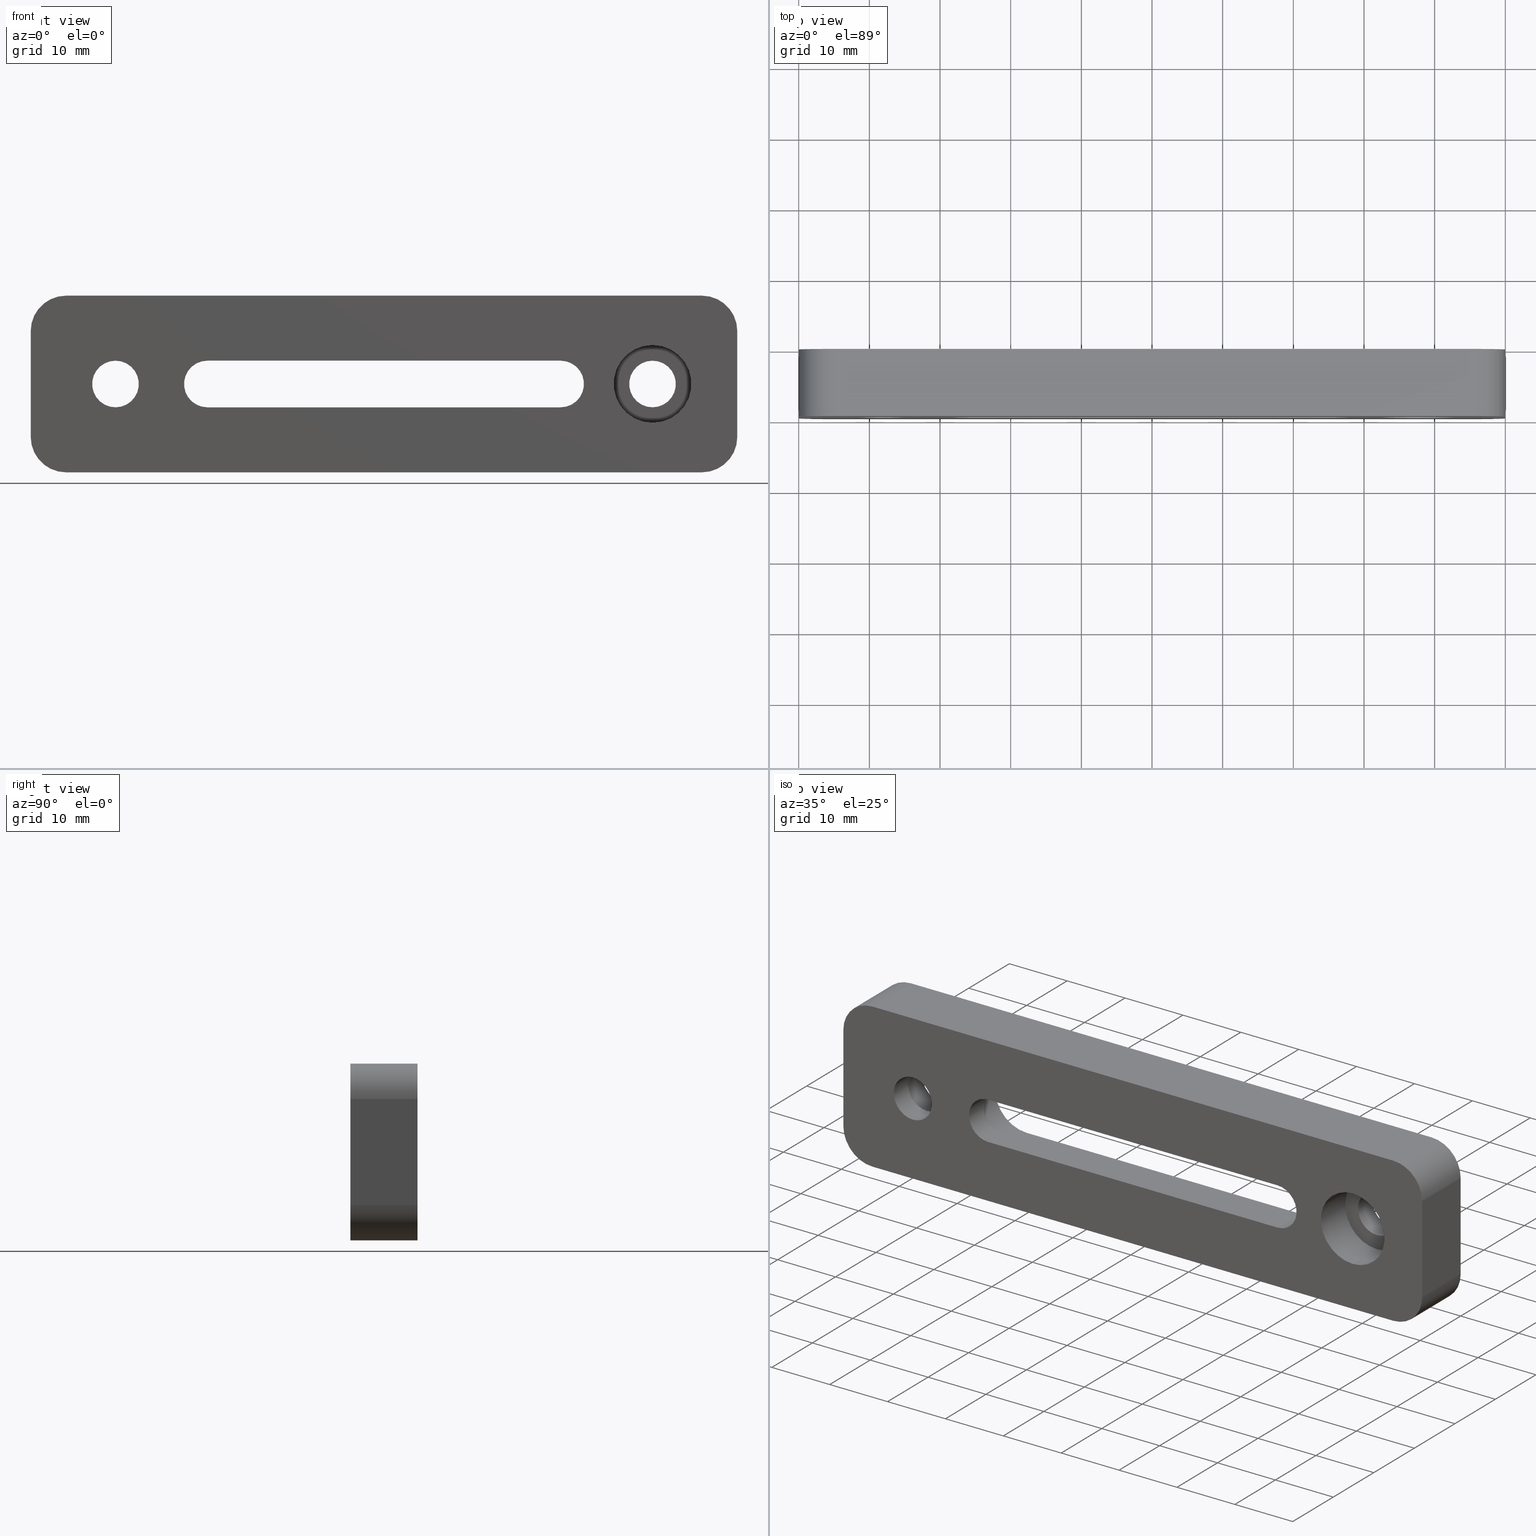
[diagram: canonical four-view strip — front | top / right | iso, engineering-drawing reading convention]
A machine part, canonical four-view strip (front | top / right | iso — engineering-drawing reading convention). The complete STEP part file that produces these views, byte-faithful:
ISO-10303-21;
HEADER;
FILE_DESCRIPTION (( 'STEP AP214' ),
    '1' );
FILE_NAME ('02SDB-3(M).STEP',
    '2018-11-08T01:43:01',
    ( '' ),
    ( '' ),
    'SwSTEP 2.0',
    'SolidWorks 2016',
    '' );
FILE_SCHEMA (( 'AUTOMOTIVE_DESIGN' ));
ENDSEC;

DATA;
#1 = ADVANCED_FACE ( 'NONE', ( #721, #556 ), #739, .F. ) ;
#2 = VECTOR ( 'NONE', #932, 1000.000000000000000 ) ;
#3 = DIRECTION ( 'NONE',  ( 0.0000000000000000000, 0.0000000000000000000, 1.000000000000000000 ) ) ;
#4 = FACE_OUTER_BOUND ( 'NONE', #225, .T. ) ;
#5 = CARTESIAN_POINT ( 'NONE',  ( -49.99999999999999300, 0.0000000000000000000, -2.312964634635743200E-014 ) ) ;
#6 = CARTESIAN_POINT ( 'NONE',  ( -45.00000000000000700, 0.0000000000000000000, -7.499999999999999100 ) ) ;
#7 = ORIENTED_EDGE ( 'NONE', *, *, #205, .F. ) ;
#8 = EDGE_CURVE ( 'NONE', #67, #720, #146, .T. ) ;
#9 = DIRECTION ( 'NONE',  ( 0.0000000000000000000, -1.000000000000000000, 0.0000000000000000000 ) ) ;
#10 = AXIS2_PLACEMENT_3D ( 'NONE', #245, #751, #199 ) ;
#11 = ORIENTED_EDGE ( 'NONE', *, *, #540, .F. ) ;
#12 = VERTEX_POINT ( 'NONE', #592 ) ;
#13 = DIRECTION ( 'NONE',  ( 0.0000000000000000000, 0.0000000000000000000, 1.000000000000000000 ) ) ;
#14 = DIRECTION ( 'NONE',  ( -0.0000000000000000000, 1.000000000000000000, -0.0000000000000000000 ) ) ;
#15 = EDGE_CURVE ( 'NONE', #155, #272, #506, .T. ) ;
#16 = EDGE_LOOP ( 'NONE', ( #340, #601 ) ) ;
#17 = EDGE_CURVE ( 'NONE', #78, #126, #701, .T. ) ;
#18 = LINE ( 'NONE', #812, #226 ) ;
#19 = CIRCLE ( 'NONE', #629, 5.499999999999998200 ) ;
#20 = CARTESIAN_POINT ( 'NONE',  ( 38.00000000000000000, -9.500000000000000000, -5.499999999999998200 ) ) ;
#21 = ADVANCED_FACE ( 'NONE', ( #337 ), #291, .F. ) ;
#22 = VERTEX_POINT ( 'NONE', #331 ) ;
#23 = CARTESIAN_POINT ( 'NONE',  ( -25.00000000000000000, -9.500000000000000000, 6.027989040367472400E-015 ) ) ;
#24 = ORIENTED_EDGE ( 'NONE', *, *, #899, .F. ) ;
#25 = CARTESIAN_POINT ( 'NONE',  ( -25.00000000000000000, -6.000000000000000000, 5.499999999999999100 ) ) ;
#26 = FACE_OUTER_BOUND ( 'NONE', #754, .T. ) ;
#27 = EDGE_CURVE ( 'NONE', #546, #620, #676, .T. ) ;
#28 = AXIS2_PLACEMENT_3D ( 'NONE', #646, #793, #374 ) ;
#29 = CARTESIAN_POINT ( 'NONE',  ( -34.69999999999998900, -5.999999999999998200, 0.0000000000000000000 ) ) ;
#30 = CARTESIAN_POINT ( 'NONE',  ( 25.00000000000000000, -9.500000000000000000, 3.299999999999995800 ) ) ;
#31 = DIRECTION ( 'NONE',  ( 1.000000000000000000, 0.0000000000000000000, -1.387778780781445700E-016 ) ) ;
#32 = VERTEX_POINT ( 'NONE', #809 ) ;
#33 = ORIENTED_EDGE ( 'NONE', *, *, #851, .T. ) ;
#34 = CARTESIAN_POINT ( 'NONE',  ( -25.00000000000000000, -9.500000000000000000, -3.299999999999988700 ) ) ;
#35 = FACE_OUTER_BOUND ( 'NONE', #149, .T. ) ;
#36 = FACE_BOUND ( 'NONE', #385, .T. ) ;
#37 = CLOSED_SHELL ( 'NONE', ( #738, #890, #806, #594, #443, #573, #424, #519, #94, #666, #523, #240, #284, #504, #373, #307, #786, #169, #98, #167, #865, #233, #147, #742, #1, #21, #218, #814, #440 ) ) ;
#38 = AXIS2_PLACEMENT_3D ( 'NONE', #365, #875, #13 ) ;
#39 = EDGE_LOOP ( 'NONE', ( #426, #709, #896, #297 ) ) ;
#40 = SURFACE_SIDE_STYLE ('',( #803 ) ) ;
#41 = CYLINDRICAL_SURFACE ( 'NONE', #217, 5.499999999999998200 ) ;
#42 = ORIENTED_EDGE ( 'NONE', *, *, #749, .T. ) ;
#43 = DIRECTION ( 'NONE',  ( 0.0000000000000000000, 1.000000000000000000, -0.0000000000000000000 ) ) ;
#44 = DIRECTION ( 'NONE',  ( 0.0000000000000000000, 0.0000000000000000000, 1.000000000000000000 ) ) ;
#45 = DIRECTION ( 'NONE',  ( 1.000000000000000000, -0.0000000000000000000, 0.0000000000000000000 ) ) ;
#46 = CARTESIAN_POINT ( 'NONE',  ( 25.00000000000000000, -9.500000000000000000, -3.299999999999995800 ) ) ;
#47 = DIRECTION ( 'NONE',  ( 0.0000000000000000000, 1.000000000000000000, -0.0000000000000000000 ) ) ;
#48 = EDGE_CURVE ( 'NONE', #570, #651, #870, .T. ) ;
#49 = ORIENTED_EDGE ( 'NONE', *, *, #112, .T. ) ;
#50 = VERTEX_POINT ( 'NONE', #550 ) ;
#51 = AXIS2_PLACEMENT_3D ( 'NONE', #901, #520, #544 ) ;
#52 = FACE_OUTER_BOUND ( 'NONE', #869, .T. ) ;
#53 = ORIENTED_EDGE ( 'NONE', *, *, #716, .F. ) ;
#54 = CIRCLE ( 'NONE', #141, 4.999999999999998200 ) ;
#55 = FACE_OUTER_BOUND ( 'NONE', #536, .T. ) ;
#56 = EDGE_CURVE ( 'NONE', #697, #752, #453, .T. ) ;
#57 = DIRECTION ( 'NONE',  ( -0.0000000000000000000, 1.000000000000000000, -0.0000000000000000000 ) ) ;
#58 = EDGE_CURVE ( 'NONE', #514, #884, #652, .T. ) ;
#59 = ORIENTED_EDGE ( 'NONE', *, *, #401, .F. ) ;
#60 = CARTESIAN_POINT ( 'NONE',  ( 38.00000000000000000, -3.500000000000001300, 0.0000000000000000000 ) ) ;
#61 = COLOUR_RGB ( '',0.5019607843137254800, 0.5019607843137254800, 0.5019607843137254800 ) ;
#62 = VERTEX_POINT ( 'NONE', #565 ) ;
#63 = DIRECTION ( 'NONE',  ( 0.0000000000000000000, 0.0000000000000000000, -1.000000000000000000 ) ) ;
#64 = ORIENTED_EDGE ( 'NONE', *, *, #840, .T. ) ;
#65 = FACE_BOUND ( 'NONE', #202, .T. ) ;
#66 = CARTESIAN_POINT ( 'NONE',  ( 50.00000000000000700, -9.500000000000000000, 7.500000000000000900 ) ) ;
#67 = VERTEX_POINT ( 'NONE', #198 ) ;
#68 = FACE_OUTER_BOUND ( 'NONE', #617, .T. ) ;
#69 = EDGE_CURVE ( 'NONE', #546, #272, #822, .T. ) ;
#70 = UNCERTAINTY_MEASURE_WITH_UNIT (LENGTH_MEASURE( 1.000000000000000100E-005 ), #405, 'distance_accuracy_value', 'NONE');
#71 = CARTESIAN_POINT ( 'NONE',  ( -38.00000000000000000, -5.999999999999998200, 5.499999999999998200 ) ) ;
#72 = AXIS2_PLACEMENT_3D ( 'NONE', #257, #537, #931 ) ;
#73 = CARTESIAN_POINT ( 'NONE',  ( -21.70000000000000300, -6.000000000000000000, 3.300000000000002000 ) ) ;
#74 = VERTEX_POINT ( 'NONE', #687 ) ;
#75 = DIRECTION ( 'NONE',  ( 0.0000000000000000000, 0.0000000000000000000, -1.000000000000000000 ) ) ;
#76 = ORIENTED_EDGE ( 'NONE', *, *, #563, .T. ) ;
#77 = ORIENTED_EDGE ( 'NONE', *, *, #205, .T. ) ;
#78 = VERTEX_POINT ( 'NONE', #856 ) ;
#79 = FACE_OUTER_BOUND ( 'NONE', #569, .T. ) ;
#80 = DIRECTION ( 'NONE',  ( 0.0000000000000000000, 0.0000000000000000000, 1.000000000000000000 ) ) ;
#81 = ORIENTED_EDGE ( 'NONE', *, *, #788, .T. ) ;
#82 = CIRCLE ( 'NONE', #38, 3.299999999999997200 ) ;
#83 = VECTOR ( 'NONE', #607, 1000.000000000000000 ) ;
#84 = DIRECTION ( 'NONE',  ( -1.000000000000000000, 0.0000000000000000000, 1.387778780781445700E-016 ) ) ;
#85 = FILL_AREA_STYLE ('',( #500 ) ) ;
#86 = CARTESIAN_POINT ( 'NONE',  ( -50.00000000000000000, -9.500000000000000000, 7.499999999999999100 ) ) ;
#87 = AXIS2_PLACEMENT_3D ( 'NONE', #787, #361, #640 ) ;
#88 = EDGE_LOOP ( 'NONE', ( #614, #502, #81, #213 ) ) ;
#89 = ORIENTED_EDGE ( 'NONE', *, *, #912, .T. ) ;
#90 = DIRECTION ( 'NONE',  ( 0.0000000000000000000, 1.000000000000000000, 0.0000000000000000000 ) ) ;
#91 = AXIS2_PLACEMENT_3D ( 'NONE', #177, #311, #308 ) ;
#92 = VECTOR ( 'NONE', #642, 1000.000000000000000 ) ;
#93 = CARTESIAN_POINT ( 'NONE',  ( -38.00000000000000000, 0.0000000000000000000, 0.0000000000000000000 ) ) ;
#94 = ADVANCED_FACE ( 'NONE', ( #841 ), #552, .F. ) ;
#95 = SURFACE_STYLE_FILL_AREA ( #85 ) ;
#96 = CARTESIAN_POINT ( 'NONE',  ( 50.00000000000000700, -9.500000000000000000, 7.500000000000000900 ) ) ;
#97 = DIRECTION ( 'NONE',  ( 0.0000000000000000000, 1.000000000000000000, 0.0000000000000000000 ) ) ;
#98 = ADVANCED_FACE ( 'NONE', ( #624, #52 ), #286, .F. ) ;
#99 = DIRECTION ( 'NONE',  ( -0.0000000000000000000, -1.000000000000000000, -0.0000000000000000000 ) ) ;
#100 = ORIENTED_EDGE ( 'NONE', *, *, #200, .F. ) ;
#101 = ORIENTED_EDGE ( 'NONE', *, *, #339, .F. ) ;
#102 = DIRECTION ( 'NONE',  ( 0.0000000000000000000, 0.0000000000000000000, -1.000000000000000000 ) ) ;
#103 = VECTOR ( 'NONE', #525, 1000.000000000000000 ) ;
#104 = EDGE_CURVE ( 'NONE', #513, #222, #430, .T. ) ;
#105 = EDGE_LOOP ( 'NONE', ( #476, #118, #554, #488 ) ) ;
#106 = FACE_OUTER_BOUND ( 'NONE', #455, .T. ) ;
#107 = LINE ( 'NONE', #234, #83 ) ;
#108 = AXIS2_PLACEMENT_3D ( 'NONE', #930, #195, #854 ) ;
#109 = DIRECTION ( 'NONE',  ( -0.0000000000000000000, 1.000000000000000000, -0.0000000000000000000 ) ) ;
#110 = EDGE_LOOP ( 'NONE', ( #675, #305 ) ) ;
#111 = DIRECTION ( 'NONE',  ( -0.0000000000000000000, -1.000000000000000000, -0.0000000000000000000 ) ) ;
#112 = EDGE_CURVE ( 'NONE', #413, #62, #794, .T. ) ;
#113 = DIRECTION ( 'NONE',  ( 0.0000000000000000000, 0.0000000000000000000, 1.000000000000000000 ) ) ;
#114 = EDGE_CURVE ( 'NONE', #515, #837, #480, .T. ) ;
#115 = ORIENTED_EDGE ( 'NONE', *, *, #904, .F. ) ;
#116 = VERTEX_POINT ( 'NONE', #86 ) ;
#117 = CARTESIAN_POINT ( 'NONE',  ( -25.00000000000000000, 0.0000000000000000000, 6.027989040367472400E-015 ) ) ;
#118 = ORIENTED_EDGE ( 'NONE', *, *, #470, .F. ) ;
#119 = FACE_OUTER_BOUND ( 'NONE', #170, .T. ) ;
#120 = ORIENTED_EDGE ( 'NONE', *, *, #372, .T. ) ;
#121 = CARTESIAN_POINT ( 'NONE',  ( 50.00000000000000700, 0.0000000000000000000, 7.500000000000000900 ) ) ;
#122 = CARTESIAN_POINT ( 'NONE',  ( -45.00000000000000700, -9.500000000000000000, -7.499999999999999100 ) ) ;
#123 = EDGE_CURVE ( 'NONE', #513, #651, #603, .T. ) ;
#124 = AXIS2_PLACEMENT_3D ( 'NONE', #586, #804, #304 ) ;
#125 = ORIENTED_EDGE ( 'NONE', *, *, #702, .T. ) ;
#126 = VERTEX_POINT ( 'NONE', #585 ) ;
#127 = ORIENTED_EDGE ( 'NONE', *, *, #702, .F. ) ;
#128 = CARTESIAN_POINT ( 'NONE',  ( -38.00000000000000000, 0.0000000000000000000, -3.300000000000004300 ) ) ;
#129 = VECTOR ( 'NONE', #90, 1000.000000000000000 ) ;
#130 = LINE ( 'NONE', #622, #481 ) ;
#131 = CARTESIAN_POINT ( 'NONE',  ( 45.00000000000000700, 0.0000000000000000000, -7.499999999999999100 ) ) ;
#132 = VERTEX_POINT ( 'NONE', #437 ) ;
#133 = PLANE ( 'NONE',  #704 ) ;
#134 = CIRCLE ( 'NONE', #276, 5.499999999999998200 ) ;
#135 = ORIENTED_EDGE ( 'NONE', *, *, #505, .T. ) ;
#136 = CARTESIAN_POINT ( 'NONE',  ( 45.00000000000001400, 0.0000000000000000000, 12.50000000000000000 ) ) ;
#137 = EDGE_LOOP ( 'NONE', ( #645, #635 ) ) ;
#138 = AXIS2_PLACEMENT_3D ( 'NONE', #30, #224, #31 ) ;
#139 = DIRECTION ( 'NONE',  ( -0.0000000000000000000, 1.000000000000000000, -0.0000000000000000000 ) ) ;
#140 = CYLINDRICAL_SURFACE ( 'NONE', #864, 4.999999999999998200 ) ;
#141 = AXIS2_PLACEMENT_3D ( 'NONE', #402, #375, #748 ) ;
#142 = DIRECTION ( 'NONE',  ( -0.0000000000000000000, 1.000000000000000000, -0.0000000000000000000 ) ) ;
#143 = DIRECTION ( 'NONE',  ( 0.0000000000000000000, 0.0000000000000000000, -1.000000000000000000 ) ) ;
#144 = ORIENTED_EDGE ( 'NONE', *, *, #435, .T. ) ;
#145 = PRODUCT_CONTEXT ( 'NONE', #934, 'mechanical' ) ;
#146 = LINE ( 'NONE', #889, #528 ) ;
#147 = ADVANCED_FACE ( 'NONE', ( #106 ), #499, .T. ) ;
#148 = DIRECTION ( 'NONE',  ( 0.0000000000000000000, 0.0000000000000000000, 1.000000000000000000 ) ) ;
#149 = EDGE_LOOP ( 'NONE', ( #354, #526, #180, #771 ) ) ;
#150 = CIRCLE ( 'NONE', #900, 4.999999999999993800 ) ;
#151 = DIRECTION ( 'NONE',  ( -0.0000000000000000000, 1.000000000000000000, -0.0000000000000000000 ) ) ;
#152 = EDGE_CURVE ( 'NONE', #78, #697, #269, .T. ) ;
#153 = PLANE ( 'NONE',  #360 ) ;
#154 = AXIS2_PLACEMENT_3D ( 'NONE', #469, #574, #670 ) ;
#155 = VERTEX_POINT ( 'NONE', #578 ) ;
#156 = LINE ( 'NONE', #456, #486 ) ;
#157 = DIRECTION ( 'NONE',  ( 0.0000000000000000000, 0.0000000000000000000, -1.000000000000000000 ) ) ;
#158 = CARTESIAN_POINT ( 'NONE',  ( 38.00000000000000000, -9.500000000000000000, 0.0000000000000000000 ) ) ;
#159 = ORIENTED_EDGE ( 'NONE', *, *, #346, .T. ) ;
#160 = EDGE_CURVE ( 'NONE', #697, #289, #457, .T. ) ;
#161 = EDGE_CURVE ( 'NONE', #399, #566, #844, .T. ) ;
#162 = SURFACE_STYLE_USAGE ( .BOTH. , #908 ) ;
#163 = ORIENTED_EDGE ( 'NONE', *, *, #254, .F. ) ;
#164 = FACE_OUTER_BOUND ( 'NONE', #756, .T. ) ;
#165 = VECTOR ( 'NONE', #321, 1000.000000000000000 ) ;
#166 = DIRECTION ( 'NONE',  ( 0.0000000000000000000, 0.0000000000000000000, -1.000000000000000000 ) ) ;
#167 = ADVANCED_FACE ( 'NONE', ( #824 ), #936, .F. ) ;
#168 = DIRECTION ( 'NONE',  ( -0.0000000000000000000, 1.000000000000000000, -0.0000000000000000000 ) ) ;
#169 = ADVANCED_FACE ( 'NONE', ( #626 ), #798, .F. ) ;
#170 = EDGE_LOOP ( 'NONE', ( #802, #582, #820, #700 ) ) ;
#171 = EDGE_CURVE ( 'NONE', #116, #570, #54, .T. ) ;
#172 = ORIENTED_EDGE ( 'NONE', *, *, #104, .F. ) ;
#173 = AXIS2_PLACEMENT_3D ( 'NONE', #867, #577, #653 ) ;
#174 = CYLINDRICAL_SURFACE ( 'NONE', #508, 5.000000000000003600 ) ;
#175 = EDGE_LOOP ( 'NONE', ( #379, #194, #773, #192 ) ) ;
#176 = VECTOR ( 'NONE', #692, 1000.000000000000000 ) ;
#177 = CARTESIAN_POINT ( 'NONE',  ( 25.00000000000000000, -9.500000000000000000, -3.299999999999995800 ) ) ;
#178 = ORIENTED_EDGE ( 'NONE', *, *, #563, .F. ) ;
#179 = DIRECTION ( 'NONE',  ( 0.0000000000000000000, 0.0000000000000000000, 1.000000000000000000 ) ) ;
#180 = ORIENTED_EDGE ( 'NONE', *, *, #716, .T. ) ;
#181 = ORIENTED_EDGE ( 'NONE', *, *, #659, .T. ) ;
#182 = ORIENTED_EDGE ( 'NONE', *, *, #356, .F. ) ;
#183 = ORIENTED_EDGE ( 'NONE', *, *, #505, .F. ) ;
#184 = CIRCLE ( 'NONE', #668, 5.000000000000003600 ) ;
#185 = CIRCLE ( 'NONE', #776, 5.499999999999998200 ) ;
#186 = AXIS2_PLACEMENT_3D ( 'NONE', #23, #596, #524 ) ;
#187 = DIRECTION ( 'NONE',  ( 0.0000000000000000000, 0.0000000000000000000, -1.000000000000000000 ) ) ;
#188 = CARTESIAN_POINT ( 'NONE',  ( 0.0000000000000000000, 0.0000000000000000000, -5.499999999999997300 ) ) ;
#189 = SHAPE_DEFINITION_REPRESENTATION ( #396, #501 ) ;
#190 = AXIS2_PLACEMENT_3D ( 'NONE', #117, #715, #446 ) ;
#191 = DIRECTION ( 'NONE',  ( 0.0000000000000000000, 0.0000000000000000000, 1.000000000000000000 ) ) ;
#192 = ORIENTED_EDGE ( 'NONE', *, *, #339, .T. ) ;
#193 = EDGE_LOOP ( 'NONE', ( #172, #699, #64, #579, #438, #135, #449, #258 ) ) ;
#194 = ORIENTED_EDGE ( 'NONE', *, *, #152, .T. ) ;
#195 = DIRECTION ( 'NONE',  ( 0.0000000000000000000, 1.000000000000000000, -0.0000000000000000000 ) ) ;
#196 = CIRCLE ( 'NONE', #551, 3.300000000000011400 ) ;
#197 = VERTEX_POINT ( 'NONE', #319 ) ;
#198 = CARTESIAN_POINT ( 'NONE',  ( 38.00000000000000000, -3.500000000000001300, -5.499999999999998200 ) ) ;
#199 = DIRECTION ( 'NONE',  ( 0.0000000000000000000, 0.0000000000000000000, -1.000000000000000000 ) ) ;
#200 = EDGE_CURVE ( 'NONE', #514, #906, #82, .T. ) ;
#201 = AXIS2_PLACEMENT_3D ( 'NONE', #827, #287, #883 ) ;
#202 = EDGE_LOOP ( 'NONE', ( #746, #333, #688, #452 ) ) ;
#203 = ORIENTED_EDGE ( 'NONE', *, *, #301, .F. ) ;
#204 = CYLINDRICAL_SURFACE ( 'NONE', #415, 3.300000000000004300 ) ;
#205 = EDGE_CURVE ( 'NONE', #289, #894, #252, .T. ) ;
#206 = CIRCLE ( 'NONE', #533, 5.000000000000003600 ) ;
#207 = CARTESIAN_POINT ( 'NONE',  ( 25.00000000000000000, -9.500000000000000000, 3.299999999999995800 ) ) ;
#208 = EDGE_CURVE ( 'NONE', #74, #126, #605, .T. ) ;
#209 = CARTESIAN_POINT ( 'NONE',  ( -50.00000000000000000, 0.0000000000000000000, 7.499999999999999100 ) ) ;
#210 = DIRECTION ( 'NONE',  ( 4.625929269271486900E-016, 0.0000000000000000000, -1.000000000000000000 ) ) ;
#211 = CARTESIAN_POINT ( 'NONE',  ( -25.00000000000000000, 0.0000000000000000000, -5.499999999999997300 ) ) ;
#212 = FACE_BOUND ( 'NONE', #110, .T. ) ;
#213 = ORIENTED_EDGE ( 'NONE', *, *, #613, .T. ) ;
#214 = EDGE_CURVE ( 'NONE', #752, #894, #432, .T. ) ;
#215 = DIRECTION ( 'NONE',  ( 0.0000000000000000000, 0.0000000000000000000, 1.000000000000000000 ) ) ;
#216 = CARTESIAN_POINT ( 'NONE',  ( 50.00000000000000700, -9.500000000000000000, 0.0000000000000000000 ) ) ;
#217 = AXIS2_PLACEMENT_3D ( 'NONE', #220, #310, #148 ) ;
#218 = ADVANCED_FACE ( 'NONE', ( #35 ), #204, .F. ) ;
#219 = CARTESIAN_POINT ( 'NONE',  ( -49.99999999999999300, -9.500000000000000000, -7.499999999999999100 ) ) ;
#220 = CARTESIAN_POINT ( 'NONE',  ( 25.00000000000000000, 0.0000000000000000000, -9.524495536929381000E-017 ) ) ;
#221 = CARTESIAN_POINT ( 'NONE',  ( 25.00000000000000000, -6.000000000000000000, -9.524495536929381000E-017 ) ) ;
#222 = VERTEX_POINT ( 'NONE', #726 ) ;
#223 = CARTESIAN_POINT ( 'NONE',  ( 38.00000000000000000, -9.500000000000000000, 0.0000000000000000000 ) ) ;
#224 = DIRECTION ( 'NONE',  ( 1.387778780781445700E-016, 0.0000000000000000000, 1.000000000000000000 ) ) ;
#225 = EDGE_LOOP ( 'NONE', ( #390, #927, #503, #278 ) ) ;
#226 = VECTOR ( 'NONE', #473, 1000.000000000000000 ) ;
#227 = FACE_BOUND ( 'NONE', #175, .T. ) ;
#228 = DIRECTION ( 'NONE',  ( 0.0000000000000000000, 1.000000000000000000, -0.0000000000000000000 ) ) ;
#229 = AXIS2_PLACEMENT_3D ( 'NONE', #581, #99, #102 ) ;
#230 = ORIENTED_EDGE ( 'NONE', *, *, #264, .T. ) ;
#231 = CARTESIAN_POINT ( 'NONE',  ( 41.30000000000001100, -3.500000000000001300, 0.0000000000000000000 ) ) ;
#232 = DIRECTION ( 'NONE',  ( -1.000000000000000000, 0.0000000000000000000, 0.0000000000000000000 ) ) ;
#233 = ADVANCED_FACE ( 'NONE', ( #583 ), #836, .T. ) ;
#234 = CARTESIAN_POINT ( 'NONE',  ( -25.00000000000000000, 4.000000000000000000, 5.499999999999999100 ) ) ;
#235 = CARTESIAN_POINT ( 'NONE',  ( -49.99999999999999300, -9.500000000000000000, -2.312964634635743200E-014 ) ) ;
#236 = ORIENTED_EDGE ( 'NONE', *, *, #152, .F. ) ;
#237 = AXIS2_PLACEMENT_3D ( 'NONE', #363, #880, #191 ) ;
#238 = DIRECTION ( 'NONE',  ( -0.0000000000000000000, -1.000000000000000000, -0.0000000000000000000 ) ) ;
#239 = FACE_BOUND ( 'NONE', #376, .T. ) ;
#240 = ADVANCED_FACE ( 'NONE', ( #774 ), #557, .T. ) ;
#241 = FILL_AREA_STYLE_COLOUR ( '', #61 ) ;
#242 = CARTESIAN_POINT ( 'NONE',  ( 38.00000000000000000, -9.500000000000000000, 0.0000000000000000000 ) ) ;
#243 = CARTESIAN_POINT ( 'NONE',  ( 38.00000000000000000, -3.500000000000001300, 3.300000000000010900 ) ) ;
#244 = EDGE_LOOP ( 'NONE', ( #919, #914, #625, #838 ) ) ;
#245 = CARTESIAN_POINT ( 'NONE',  ( 38.00000000000000000, 0.0000000000000000000, 0.0000000000000000000 ) ) ;
#246 = EDGE_LOOP ( 'NONE', ( #843, #819, #905, #261 ) ) ;
#247 = EDGE_CURVE ( 'NONE', #906, #474, #18, .T. ) ;
#248 = VECTOR ( 'NONE', #423, 1000.000000000000000 ) ;
#249 = AXIS2_PLACEMENT_3D ( 'NONE', #694, #611, #63 ) ;
#250 = VERTEX_POINT ( 'NONE', #427 ) ;
#251 = CARTESIAN_POINT ( 'NONE',  ( 45.00000000000000700, -9.500000000000000000, 7.500000000000000900 ) ) ;
#252 = LINE ( 'NONE', #891, #408 ) ;
#253 = CYLINDRICAL_SURFACE ( 'NONE', #434, 5.499999999999998200 ) ;
#254 = EDGE_CURVE ( 'NONE', #368, #32, #386, .T. ) ;
#255 = EDGE_CURVE ( 'NONE', #662, #197, #370, .T. ) ;
#256 = DIRECTION ( 'NONE',  ( 1.000000000000000000, 0.0000000000000000000, -1.387778780781445700E-016 ) ) ;
#257 = CARTESIAN_POINT ( 'NONE',  ( 0.0000000000000000000, -9.500000000000000000, 12.50000000000000000 ) ) ;
#258 = ORIENTED_EDGE ( 'NONE', *, *, #644, .T. ) ;
#259 = DIRECTION ( 'NONE',  ( 0.0000000000000000000, 1.000000000000000000, 0.0000000000000000000 ) ) ;
#260 = VECTOR ( 'NONE', #497, 1000.000000000000000 ) ;
#261 = ORIENTED_EDGE ( 'NONE', *, *, #470, .T. ) ;
#262 = VECTOR ( 'NONE', #510, 1000.000000000000000 ) ;
#263 = DIRECTION ( 'NONE',  ( 0.0000000000000000000, 0.0000000000000000000, 1.000000000000000000 ) ) ;
#264 = EDGE_CURVE ( 'NONE', #50, #353, #757, .T. ) ;
#265 = ORIENTED_EDGE ( 'NONE', *, *, #264, .F. ) ;
#266 = EDGE_LOOP ( 'NONE', ( #463, #300 ) ) ;
#267 = VECTOR ( 'NONE', #475, 1000.000000000000000 ) ;
#268 = DIRECTION ( 'NONE',  ( 0.0000000000000000000, 1.000000000000000000, 0.0000000000000000000 ) ) ;
#269 = LINE ( 'NONE', #575, #656 ) ;
#270 = FACE_BOUND ( 'NONE', #861, .T. ) ;
#271 = CARTESIAN_POINT ( 'NONE',  ( 38.00000000000000000, -3.500000000000001300, 0.0000000000000000000 ) ) ;
#272 = VERTEX_POINT ( 'NONE', #350 ) ;
#273 = CARTESIAN_POINT ( 'NONE',  ( 38.00000000000000000, -9.500000000000000000, -3.300000000000004300 ) ) ;
#274 = DIRECTION ( 'NONE',  ( 1.000000000000000000, -0.0000000000000000000, 0.0000000000000000000 ) ) ;
#275 = ORIENTED_EDGE ( 'NONE', *, *, #912, .F. ) ;
#276 = AXIS2_PLACEMENT_3D ( 'NONE', #293, #650, #143 ) ;
#277 = ORIENTED_EDGE ( 'NONE', *, *, #847, .T. ) ;
#278 = ORIENTED_EDGE ( 'NONE', *, *, #27, .F. ) ;
#279 = VECTOR ( 'NONE', #466, 1000.000000000000000 ) ;
#280 = CARTESIAN_POINT ( 'NONE',  ( -38.00000000000000000, -9.500000000000000000, -3.299999999999997200 ) ) ;
#281 = ORIENTED_EDGE ( 'NONE', *, *, #214, .T. ) ;
#282 = LINE ( 'NONE', #848, #262 ) ;
#283 = AXIS2_PLACEMENT_3D ( 'NONE', #221, #151, #292 ) ;
#284 = ADVANCED_FACE ( 'NONE', ( #539 ), #545, .T. ) ;
#285 = CARTESIAN_POINT ( 'NONE',  ( 0.0000000000000000000, 0.0000000000000000000, 0.0000000000000000000 ) ) ;
#286 = PLANE ( 'NONE',  #690 ) ;
#287 = DIRECTION ( 'NONE',  ( -0.0000000000000000000, 1.000000000000000000, -0.0000000000000000000 ) ) ;
#288 = ORIENTED_EDGE ( 'NONE', *, *, #801, .F. ) ;
#289 = VERTEX_POINT ( 'NONE', #46 ) ;
#290 = DIRECTION ( 'NONE',  ( 0.0000000000000000000, 1.000000000000000000, 0.0000000000000000000 ) ) ;
#291 = CYLINDRICAL_SURFACE ( 'NONE', #492, 5.499999999999998200 ) ;
#292 = DIRECTION ( 'NONE',  ( 0.0000000000000000000, 0.0000000000000000000, 1.000000000000000000 ) ) ;
#293 = CARTESIAN_POINT ( 'NONE',  ( 38.00000000000000000, -9.500000000000000000, 0.0000000000000000000 ) ) ;
#294 = VECTOR ( 'NONE', #910, 1000.000000000000000 ) ;
#295 = LINE ( 'NONE', #73, #845 ) ;
#296 = EDGE_CURVE ( 'NONE', #797, #662, #184, .T. ) ;
#297 = ORIENTED_EDGE ( 'NONE', *, *, #15, .F. ) ;
#298 = DIRECTION ( 'NONE',  ( 0.0000000000000000000, 1.000000000000000000, -0.0000000000000000000 ) ) ;
#299 = AXIS2_PLACEMENT_3D ( 'NONE', #122, #696, #658 ) ;
#300 = ORIENTED_EDGE ( 'NONE', *, *, #521, .F. ) ;
#301 = EDGE_CURVE ( 'NONE', #546, #12, #348, .T. ) ;
#302 = ORIENTED_EDGE ( 'NONE', *, *, #58, .T. ) ;
#303 = CARTESIAN_POINT ( 'NONE',  ( -45.00000000000000700, 0.0000000000000000000, 7.499999999999999100 ) ) ;
#304 = DIRECTION ( 'NONE',  ( 0.0000000000000000000, 0.0000000000000000000, 1.000000000000000000 ) ) ;
#305 = ORIENTED_EDGE ( 'NONE', *, *, #161, .F. ) ;
#306 = VECTOR ( 'NONE', #84, 1000.000000000000000 ) ;
#307 = ADVANCED_FACE ( 'NONE', ( #164 ), #140, .T. ) ;
#308 = DIRECTION ( 'NONE',  ( -1.000000000000000000, 0.0000000000000000000, 1.387778780781445700E-016 ) ) ;
#309 = CARTESIAN_POINT ( 'NONE',  ( 0.0000000000000000000, 0.0000000000000000000, 5.499999999999999100 ) ) ;
#310 = DIRECTION ( 'NONE',  ( -0.0000000000000000000, 1.000000000000000000, -0.0000000000000000000 ) ) ;
#311 = DIRECTION ( 'NONE',  ( -1.387778780781445700E-016, 0.0000000000000000000, -1.000000000000000000 ) ) ;
#312 = EDGE_CURVE ( 'NONE', #116, #513, #712, .T. ) ;
#313 = EDGE_LOOP ( 'NONE', ( #77, #178, #604, #101 ) ) ;
#314 = ORIENTED_EDGE ( 'NONE', *, *, #214, .F. ) ;
#315 = AXIS2_PLACEMENT_3D ( 'NONE', #223, #727, #422 ) ;
#316 = EDGE_LOOP ( 'NONE', ( #684, #530 ) ) ;
#317 = DIRECTION ( 'NONE',  ( -0.0000000000000000000, 1.000000000000000000, -0.0000000000000000000 ) ) ;
#318 = VECTOR ( 'NONE', #232, 1000.000000000000000 ) ;
#319 = CARTESIAN_POINT ( 'NONE',  ( 50.00000000000000700, 0.0000000000000000000, -7.499999999999999100 ) ) ;
#320 = VECTOR ( 'NONE', #364, 1000.000000000000000 ) ;
#321 = DIRECTION ( 'NONE',  ( 1.000000000000000000, -0.0000000000000000000, 0.0000000000000000000 ) ) ;
#322 = CIRCLE ( 'NONE', #87, 3.300000000000011400 ) ;
#323 = VERTEX_POINT ( 'NONE', #393 ) ;
#324 =( GEOMETRIC_REPRESENTATION_CONTEXT ( 3 ) GLOBAL_UNCERTAINTY_ASSIGNED_CONTEXT ( ( #398 ) ) GLOBAL_UNIT_ASSIGNED_CONTEXT ( ( #762, #329, #572 ) ) REPRESENTATION_CONTEXT ( 'NONE', 'WORKASPACE' ) );
#325 = ORIENTED_EDGE ( 'NONE', *, *, #659, .F. ) ;
#326 = ORIENTED_EDGE ( 'NONE', *, *, #330, .T. ) ;
#327 = CARTESIAN_POINT ( 'NONE',  ( -45.00000000000000700, -9.500000000000000000, -12.49999999999999600 ) ) ;
#328 = LINE ( 'NONE', #698, #691 ) ;
#329 =( NAMED_UNIT ( * ) PLANE_ANGLE_UNIT ( ) SI_UNIT ( $, .RADIAN. ) );
#330 = EDGE_CURVE ( 'NONE', #673, #853, #328, .T. ) ;
#331 = CARTESIAN_POINT ( 'NONE',  ( 45.00000000000000700, 0.0000000000000000000, -12.49999999999999600 ) ) ;
#332 = AXIS2_PLACEMENT_3D ( 'NONE', #641, #559, #44 ) ;
#333 = ORIENTED_EDGE ( 'NONE', *, *, #15, .T. ) ;
#334 = ORIENTED_EDGE ( 'NONE', *, *, #114, .T. ) ;
#335 = DIRECTION ( 'NONE',  ( 0.0000000000000000000, 0.0000000000000000000, 1.000000000000000000 ) ) ;
#336 = DIRECTION ( 'NONE',  ( -0.0000000000000000000, 1.000000000000000000, -0.0000000000000000000 ) ) ;
#337 = FACE_OUTER_BOUND ( 'NONE', #454, .T. ) ;
#338 = VECTOR ( 'NONE', #259, 1000.000000000000000 ) ;
#339 = EDGE_CURVE ( 'NONE', #289, #818, #885, .T. ) ;
#340 = ORIENTED_EDGE ( 'NONE', *, *, #435, .F. ) ;
#341 = AXIS2_PLACEMENT_3D ( 'NONE', #542, #609, #335 ) ;
#342 = VECTOR ( 'NONE', #445, 1000.000000000000000 ) ;
#343 = FILL_AREA_STYLE ('',( #241 ) ) ;
#344 = CARTESIAN_POINT ( 'NONE',  ( -25.00000000000000000, -6.000000000000000000, 6.027989040367472400E-015 ) ) ;
#345 = ORIENTED_EDGE ( 'NONE', *, *, #489, .T. ) ;
#346 = EDGE_CURVE ( 'NONE', #620, #132, #494, .T. ) ;
#347 = ORIENTED_EDGE ( 'NONE', *, *, #667, .T. ) ;
#348 = LINE ( 'NONE', #188, #907 ) ;
#349 = VECTOR ( 'NONE', #109, 1000.000000000000000 ) ;
#350 = CARTESIAN_POINT ( 'NONE',  ( -25.00000000000000000, 0.0000000000000000000, 5.499999999999999100 ) ) ;
#351 = DIRECTION ( 'NONE',  ( -0.0000000000000000000, -1.000000000000000000, -0.0000000000000000000 ) ) ;
#352 = DIRECTION ( 'NONE',  ( -0.0000000000000000000, 0.0000000000000000000, 1.000000000000000000 ) ) ;
#353 = VERTEX_POINT ( 'NONE', #543 ) ;
#354 = ORIENTED_EDGE ( 'NONE', *, *, #330, .F. ) ;
#355 = CIRCLE ( 'NONE', #448, 5.000000000000000900 ) ;
#356 = EDGE_CURVE ( 'NONE', #720, #877, #733, .T. ) ;
#357 = ORIENTED_EDGE ( 'NONE', *, *, #588, .F. ) ;
#358 = CYLINDRICAL_SURFACE ( 'NONE', #51, 5.499999999999998200 ) ;
#359 = DIRECTION ( 'NONE',  ( 0.0000000000000000000, -0.0000000000000000000, -1.000000000000000000 ) ) ;
#360 = AXIS2_PLACEMENT_3D ( 'NONE', #498, #298, #215 ) ;
#361 = DIRECTION ( 'NONE',  ( -0.0000000000000000000, -1.000000000000000000, -0.0000000000000000000 ) ) ;
#362 = CARTESIAN_POINT ( 'NONE',  ( -38.00000000000000000, -3.851859888774471700E-031, -5.499999999999998200 ) ) ;
#363 = CARTESIAN_POINT ( 'NONE',  ( -25.00000000000000000, -6.000000000000000000, 6.027989040367472400E-015 ) ) ;
#364 = DIRECTION ( 'NONE',  ( 0.0000000000000000000, 1.000000000000000000, 0.0000000000000000000 ) ) ;
#365 = CARTESIAN_POINT ( 'NONE',  ( -38.00000000000000000, -9.500000000000000000, 0.0000000000000000000 ) ) ;
#366 = CARTESIAN_POINT ( 'NONE',  ( -38.00000000000000000, 0.0000000000000000000, 0.0000000000000000000 ) ) ;
#367 = ORIENTED_EDGE ( 'NONE', *, *, #56, .F. ) ;
#368 = VERTEX_POINT ( 'NONE', #71 ) ;
#369 = EDGE_LOOP ( 'NONE', ( #11, #277, #461, #265 ) ) ;
#370 = LINE ( 'NONE', #487, #928 ) ;
#371 = DIRECTION ( 'NONE',  ( -0.0000000000000000000, -1.000000000000000000, -0.0000000000000000000 ) ) ;
#372 = EDGE_CURVE ( 'NONE', #132, #50, #467, .T. ) ;
#373 = ADVANCED_FACE ( 'NONE', ( #119 ), #471, .T. ) ;
#374 = DIRECTION ( 'NONE',  ( 0.0000000000000000000, 0.0000000000000000000, 1.000000000000000000 ) ) ;
#375 = DIRECTION ( 'NONE',  ( 0.0000000000000000000, 1.000000000000000000, -0.0000000000000000000 ) ) ;
#376 = EDGE_LOOP ( 'NONE', ( #347, #744 ) ) ;
#377 = ORIENTED_EDGE ( 'NONE', *, *, #631, .F. ) ;
#378 = VECTOR ( 'NONE', #419, 1000.000000000000000 ) ;
#379 = ORIENTED_EDGE ( 'NONE', *, *, #899, .T. ) ;
#380 = DIRECTION ( 'NONE',  ( 0.0000000000000000000, 0.0000000000000000000, -1.000000000000000000 ) ) ;
#381 = DIRECTION ( 'NONE',  ( 0.0000000000000000000, 1.000000000000000000, 0.0000000000000000000 ) ) ;
#382 = CARTESIAN_POINT ( 'NONE',  ( 25.00000000000000000, 0.0000000000000000000, -9.524495536929381000E-017 ) ) ;
#383 = EDGE_CURVE ( 'NONE', #368, #566, #859, .T. ) ;
#384 = VERTEX_POINT ( 'NONE', #892 ) ;
#385 = EDGE_LOOP ( 'NONE', ( #125, #407 ) ) ;
#386 = CIRCLE ( 'NONE', #522, 5.499999999999998200 ) ;
#387 = CIRCLE ( 'NONE', #681, 5.499999999999998200 ) ;
#388 = EDGE_CURVE ( 'NONE', #323, #877, #441, .T. ) ;
#389 = DIRECTION ( 'NONE',  ( -0.0000000000000000000, -1.000000000000000000, -0.0000000000000000000 ) ) ;
#390 = ORIENTED_EDGE ( 'NONE', *, *, #69, .T. ) ;
#391 = AXIS2_PLACEMENT_3D ( 'NONE', #29, #444, #669 ) ;
#392 = CARTESIAN_POINT ( 'NONE',  ( -45.00000000000000700, -9.500000000000000000, 12.50000000000000000 ) ) ;
#393 = CARTESIAN_POINT ( 'NONE',  ( 38.00000000000000000, -3.500000000000001300, 5.499999999999998200 ) ) ;
#394 = DIRECTION ( 'NONE',  ( 1.000000000000000000, 0.0000000000000000000, 0.0000000000000000000 ) ) ;
#395 = CARTESIAN_POINT ( 'NONE',  ( -50.00000000000000000, -9.500000000000000000, 7.499999999999999100 ) ) ;
#396 = PRODUCT_DEFINITION_SHAPE ( 'NONE', 'NONE',  #761 ) ;
#397 = CYLINDRICAL_SURFACE ( 'NONE', #315, 5.499999999999998200 ) ;
#398 = UNCERTAINTY_MEASURE_WITH_UNIT (LENGTH_MEASURE( 1.000000000000000100E-005 ), #762, 'distance_accuracy_value', 'NONE');
#399 = VERTEX_POINT ( 'NONE', #362 ) ;
#400 = CARTESIAN_POINT ( 'NONE',  ( -49.99999999999999300, -9.500000000000000000, -7.499999999999999100 ) ) ;
#401 = EDGE_CURVE ( 'NONE', #12, #353, #834, .T. ) ;
#402 = CARTESIAN_POINT ( 'NONE',  ( -45.00000000000000700, -9.500000000000000000, 7.499999999999999100 ) ) ;
#403 = CARTESIAN_POINT ( 'NONE',  ( -45.00000000000000700, -9.500000000000000000, -12.49999999999999600 ) ) ;
#404 = ORIENTED_EDGE ( 'NONE', *, *, #112, .F. ) ;
#405 =( LENGTH_UNIT ( ) NAMED_UNIT ( * ) SI_UNIT ( .MILLI., .METRE. ) );
#406 = VECTOR ( 'NONE', #829, 1000.000000000000000 ) ;
#407 = ORIENTED_EDGE ( 'NONE', *, *, #200, .T. ) ;
#408 = VECTOR ( 'NONE', #795, 1000.000000000000000 ) ;
#409 = VECTOR ( 'NONE', #45, 1000.000000000000000 ) ;
#410 = CARTESIAN_POINT ( 'NONE',  ( 45.00000000000001400, -9.500000000000000000, 12.50000000000000000 ) ) ;
#411 = CARTESIAN_POINT ( 'NONE',  ( 25.00000000000000000, -9.500000000000000000, 3.299999999999995800 ) ) ;
#412 = STYLED_ITEM ( 'NONE', ( #608 ), #501 ) ;
#413 = VERTEX_POINT ( 'NONE', #66 ) ;
#414 = EDGE_CURVE ( 'NONE', #566, #399, #612, .T. ) ;
#415 = AXIS2_PLACEMENT_3D ( 'NONE', #628, #389, #683 ) ;
#416 = CIRCLE ( 'NONE', #173, 3.300000000000011400 ) ;
#417 = EDGE_LOOP ( 'NONE', ( #183, #648, #731, #181 ) ) ;
#418 = PRESENTATION_STYLE_ASSIGNMENT (( #162 ) ) ;
#419 = DIRECTION ( 'NONE',  ( 0.0000000000000000000, 1.000000000000000000, 0.0000000000000000000 ) ) ;
#420 = DIRECTION ( 'NONE',  ( 1.000000000000000000, 0.0000000000000000000, 0.0000000000000000000 ) ) ;
#421 = DIRECTION ( 'NONE',  ( 0.0000000000000000000, 0.0000000000000000000, -1.000000000000000000 ) ) ;
#422 = DIRECTION ( 'NONE',  ( 0.0000000000000000000, 0.0000000000000000000, -1.000000000000000000 ) ) ;
#423 = DIRECTION ( 'NONE',  ( 4.625929269271486900E-016, 0.0000000000000000000, -1.000000000000000000 ) ) ;
#424 = ADVANCED_FACE ( 'NONE', ( #638 ), #41, .F. ) ;
#425 = PRODUCT_DEFINITION_CONTEXT ( 'detailed design', #713, 'design' ) ;
#426 = ORIENTED_EDGE ( 'NONE', *, *, #540, .T. ) ;
#427 = CARTESIAN_POINT ( 'NONE',  ( 38.00000000000000000, -3.500000000000001300, -3.300000000000011400 ) ) ;
#428 = ORIENTED_EDGE ( 'NONE', *, *, #58, .F. ) ;
#429 = CARTESIAN_POINT ( 'NONE',  ( 38.00000000000000000, -3.500000000000001300, 0.0000000000000000000 ) ) ;
#430 = LINE ( 'NONE', #5, #248 ) ;
#431 = EDGE_LOOP ( 'NONE', ( #288, #555, #879, #610 ) ) ;
#432 = CIRCLE ( 'NONE', #283, 3.299999999999997200 ) ;
#433 = CIRCLE ( 'NONE', #341, 3.300000000000011400 ) ;
#434 = AXIS2_PLACEMENT_3D ( 'NONE', #158, #111, #421 ) ;
#435 = EDGE_CURVE ( 'NONE', #474, #884, #416, .T. ) ;
#436 = AXIS2_PLACEMENT_3D ( 'NONE', #922, #142, #113 ) ;
#437 = CARTESIAN_POINT ( 'NONE',  ( -25.00000000000000000, -6.000000000000000000, 5.499999999999999100 ) ) ;
#438 = ORIENTED_EDGE ( 'NONE', *, *, #255, .T. ) ;
#439 = DIRECTION ( 'NONE',  ( 1.000000000000000000, 0.0000000000000000000, 0.0000000000000000000 ) ) ;
#440 = ADVANCED_FACE ( 'NONE', ( #664 ), #397, .F. ) ;
#441 = LINE ( 'NONE', #763, #260 ) ;
#442 = LINE ( 'NONE', #772, #468 ) ;
#443 = ADVANCED_FACE ( 'NONE', ( #239, #212, #781, #65 ), #153, .T. ) ;
#444 = DIRECTION ( 'NONE',  ( 0.0000000000000000000, -1.000000000000000000, 0.0000000000000000000 ) ) ;
#445 = DIRECTION ( 'NONE',  ( 1.000000000000000000, -0.0000000000000000000, 0.0000000000000000000 ) ) ;
#446 = DIRECTION ( 'NONE',  ( 0.0000000000000000000, 0.0000000000000000000, 1.000000000000000000 ) ) ;
#447 = EDGE_CURVE ( 'NONE', #62, #837, #768, .T. ) ;
#448 = AXIS2_PLACEMENT_3D ( 'NONE', #131, #47, #478 ) ;
#449 = ORIENTED_EDGE ( 'NONE', *, *, #863, .F. ) ;
#450 = CARTESIAN_POINT ( 'NONE',  ( -38.00000000000000000, -5.999999999999998200, -3.300000000000010900 ) ) ;
#451 = CARTESIAN_POINT ( 'NONE',  ( 50.00000000000000700, -9.500000000000000000, 0.0000000000000000000 ) ) ;
#452 = ORIENTED_EDGE ( 'NONE', *, *, #301, .T. ) ;
#453 = LINE ( 'NONE', #411, #267 ) ;
#454 = EDGE_LOOP ( 'NONE', ( #115, #163, #933, #689 ) ) ;
#455 = EDGE_LOOP ( 'NONE', ( #732, #792, #59, #203 ) ) ;
#456 = CARTESIAN_POINT ( 'NONE',  ( -38.00000000000000000, 0.0000000000000000000, -5.499999999999998200 ) ) ;
#457 = CIRCLE ( 'NONE', #779, 3.299999999999997200 ) ;
#458 = VECTOR ( 'NONE', #917, 1000.000000000000000 ) ;
#459 = CARTESIAN_POINT ( 'NONE',  ( 45.00000000000000700, -9.500000000000000000, -7.499999999999999100 ) ) ;
#460 = ORIENTED_EDGE ( 'NONE', *, *, #549, .T. ) ;
#461 = ORIENTED_EDGE ( 'NONE', *, *, #401, .T. ) ;
#462 = CARTESIAN_POINT ( 'NONE',  ( -25.00000000000000000, 4.000000000000000000, -5.499999999999997300 ) ) ;
#463 = ORIENTED_EDGE ( 'NONE', *, *, #903, .F. ) ;
#464 = PRESENTATION_LAYER_ASSIGNMENT (  '', '', ( #412 ) ) ;
#465 =( LENGTH_UNIT ( ) NAMED_UNIT ( * ) SI_UNIT ( .MILLI., .METRE. ) );
#466 = DIRECTION ( 'NONE',  ( 1.000000000000000000, 0.0000000000000000000, 0.0000000000000000000 ) ) ;
#467 = LINE ( 'NONE', #25, #279 ) ;
#468 = VECTOR ( 'NONE', #256, 1000.000000000000000 ) ;
#469 = CARTESIAN_POINT ( 'NONE',  ( -38.00000000000000000, 0.0000000000000000000, 0.0000000000000000000 ) ) ;
#470 = EDGE_CURVE ( 'NONE', #924, #222, #595, .T. ) ;
#471 = PLANE ( 'NONE',  #72 ) ;
#472 = AXIS2_PLACEMENT_3D ( 'NONE', #893, #166, #707 ) ;
#473 = DIRECTION ( 'NONE',  ( -0.0000000000000000000, 1.000000000000000000, -0.0000000000000000000 ) ) ;
#474 = VERTEX_POINT ( 'NONE', #725 ) ;
#475 = DIRECTION ( 'NONE',  ( -0.0000000000000000000, 1.000000000000000000, -0.0000000000000000000 ) ) ;
#476 = ORIENTED_EDGE ( 'NONE', *, *, #104, .T. ) ;
#477 = VECTOR ( 'NONE', #139, 1000.000000000000000 ) ;
#478 = DIRECTION ( 'NONE',  ( 0.0000000000000000000, 0.0000000000000000000, 1.000000000000000000 ) ) ;
#479 = ORIENTED_EDGE ( 'NONE', *, *, #17, .T. ) ;
#480 = LINE ( 'NONE', #507, #294 ) ;
#481 = VECTOR ( 'NONE', #661, 1000.000000000000000 ) ;
#482 = DIRECTION ( 'NONE',  ( 0.0000000000000000000, 0.0000000000000000000, 1.000000000000000000 ) ) ;
#483 = DIRECTION ( 'NONE',  ( 0.0000000000000000000, 1.000000000000000000, -0.0000000000000000000 ) ) ;
#484 = AXIS2_PLACEMENT_3D ( 'NONE', #366, #876, #598 ) ;
#485 = CARTESIAN_POINT ( 'NONE',  ( -38.00000000000000000, 0.0000000000000000000, 0.0000000000000000000 ) ) ;
#486 = VECTOR ( 'NONE', #743, 1000.000000000000000 ) ;
#487 = CARTESIAN_POINT ( 'NONE',  ( 50.00000000000000700, 0.0000000000000000000, 0.0000000000000000000 ) ) ;
#488 = ORIENTED_EDGE ( 'NONE', *, *, #312, .T. ) ;
#489 = EDGE_CURVE ( 'NONE', #62, #197, #571, .T. ) ;
#490 = CARTESIAN_POINT ( 'NONE',  ( 45.00000000000000700, -9.500000000000000000, -12.49999999999999600 ) ) ;
#491 = DIRECTION ( 'NONE',  ( 0.0000000000000000000, 1.000000000000000000, 0.0000000000000000000 ) ) ;
#492 = AXIS2_PLACEMENT_3D ( 'NONE', #93, #336, #737 ) ;
#493 = ORIENTED_EDGE ( 'NONE', *, *, #160, .F. ) ;
#494 = CIRCLE ( 'NONE', #815, 5.499999999999998200 ) ;
#495 = CARTESIAN_POINT ( 'NONE',  ( -25.00000000000000000, -9.500000000000000000, -3.299999999999988700 ) ) ;
#496 = DIRECTION ( 'NONE',  ( -0.0000000000000000000, 0.0000000000000000000, 1.000000000000000000 ) ) ;
#497 = DIRECTION ( 'NONE',  ( -0.0000000000000000000, -1.000000000000000000, -0.0000000000000000000 ) ) ;
#498 = CARTESIAN_POINT ( 'NONE',  ( 0.0000000000000000000, 0.0000000000000000000, 0.0000000000000000000 ) ) ;
#499 = PLANE ( 'NONE',  #833 ) ;
#500 = FILL_AREA_STYLE_COLOUR ( '', #615 ) ;
#501 = ADVANCED_BREP_SHAPE_REPRESENTATION ( '02SDB-3(M)', ( #568, #714 ), #324 ) ;
#502 = ORIENTED_EDGE ( 'NONE', *, *, #765, .F. ) ;
#503 = ORIENTED_EDGE ( 'NONE', *, *, #346, .F. ) ;
#504 = ADVANCED_FACE ( 'NONE', ( #745 ), #174, .T. ) ;
#505 = EDGE_CURVE ( 'NONE', #197, #22, #355, .T. ) ;
#506 = LINE ( 'NONE', #309, #318 ) ;
#507 = CARTESIAN_POINT ( 'NONE',  ( 0.0000000000000000000, -9.500000000000000000, -12.49999999999999600 ) ) ;
#508 = AXIS2_PLACEMENT_3D ( 'NONE', #251, #290, #680 ) ;
#509 = LINE ( 'NONE', #490, #320 ) ;
#510 = DIRECTION ( 'NONE',  ( 4.625929269271486900E-016, 0.0000000000000000000, -1.000000000000000000 ) ) ;
#511 = FACE_OUTER_BOUND ( 'NONE', #916, .T. ) ;
#512 = CARTESIAN_POINT ( 'NONE',  ( 45.00000000000000700, -9.500000000000000000, -12.49999999999999600 ) ) ;
#513 = VERTEX_POINT ( 'NONE', #209 ) ;
#514 = VERTEX_POINT ( 'NONE', #280 ) ;
#515 = VERTEX_POINT ( 'NONE', #403 ) ;
#516 = VECTOR ( 'NONE', #491, 1000.000000000000000 ) ;
#517 = MECHANICAL_DESIGN_GEOMETRIC_PRESENTATION_REPRESENTATION (  '', ( #412 ), #560 ) ;
#518 = CARTESIAN_POINT ( 'NONE',  ( 0.0000000000000000000, -9.500000000000000000, 0.0000000000000000000 ) ) ;
#519 = ADVANCED_FACE ( 'NONE', ( #26 ), #665, .F. ) ;
#520 = DIRECTION ( 'NONE',  ( -0.0000000000000000000, 1.000000000000000000, -0.0000000000000000000 ) ) ;
#521 = EDGE_CURVE ( 'NONE', #853, #250, #196, .T. ) ;
#522 = AXIS2_PLACEMENT_3D ( 'NONE', #619, #633, #695 ) ;
#523 = ADVANCED_FACE ( 'NONE', ( #79 ), #133, .F. ) ;
#524 = DIRECTION ( 'NONE',  ( 0.0000000000000000000, 0.0000000000000000000, 1.000000000000000000 ) ) ;
#525 = DIRECTION ( 'NONE',  ( 0.0000000000000000000, -1.000000000000000000, 0.0000000000000000000 ) ) ;
#526 = ORIENTED_EDGE ( 'NONE', *, *, #667, .F. ) ;
#527 = DIRECTION ( 'NONE',  ( 0.0000000000000000000, 0.0000000000000000000, 1.000000000000000000 ) ) ;
#528 = VECTOR ( 'NONE', #238, 1000.000000000000000 ) ;
#529 = DIRECTION ( 'NONE',  ( 0.0000000000000000000, 0.0000000000000000000, 1.000000000000000000 ) ) ;
#530 = ORIENTED_EDGE ( 'NONE', *, *, #801, .T. ) ;
#531 = CIRCLE ( 'NONE', #108, 4.999999999999993800 ) ;
#532 = LINE ( 'NONE', #674, #342 ) ;
#533 = AXIS2_PLACEMENT_3D ( 'NONE', #769, #777, #710 ) ;
#534 = ORIENTED_EDGE ( 'NONE', *, *, #247, .T. ) ;
#535 = PLANE ( 'NONE',  #138 ) ;
#536 = EDGE_LOOP ( 'NONE', ( #428, #127, #534, #144 ) ) ;
#537 = DIRECTION ( 'NONE',  ( -0.0000000000000000000, 0.0000000000000000000, 1.000000000000000000 ) ) ;
#538 = VERTEX_POINT ( 'NONE', #923 ) ;
#539 = FACE_OUTER_BOUND ( 'NONE', #730, .T. ) ;
#540 = EDGE_CURVE ( 'NONE', #155, #50, #835, .T. ) ;
#541 = LINE ( 'NONE', #34, #349 ) ;
#542 = CARTESIAN_POINT ( 'NONE',  ( -38.00000000000000000, -5.999999999999998200, 0.0000000000000000000 ) ) ;
#543 = CARTESIAN_POINT ( 'NONE',  ( 25.00000000000000000, -6.000000000000000000, -5.499999999999998200 ) ) ;
#544 = DIRECTION ( 'NONE',  ( 0.0000000000000000000, 0.0000000000000000000, 1.000000000000000000 ) ) ;
#545 = PLANE ( 'NONE',  #717 ) ;
#546 = VERTEX_POINT ( 'NONE', #211 ) ;
#547 = LINE ( 'NONE', #96, #338 ) ;
#548 = DIRECTION ( 'NONE',  ( -0.0000000000000000000, 1.000000000000000000, -0.0000000000000000000 ) ) ;
#549 = EDGE_CURVE ( 'NONE', #116, #924, #282, .T. ) ;
#550 = CARTESIAN_POINT ( 'NONE',  ( 25.00000000000000000, -6.000000000000000000, 5.499999999999999100 ) ) ;
#551 = AXIS2_PLACEMENT_3D ( 'NONE', #271, #602, #682 ) ;
#552 = PLANE ( 'NONE',  #589 ) ;
#553 = CARTESIAN_POINT ( 'NONE',  ( 25.00000000000000000, 0.0000000000000000000, 5.499999999999998200 ) ) ;
#554 = ORIENTED_EDGE ( 'NONE', *, *, #549, .F. ) ;
#555 = ORIENTED_EDGE ( 'NONE', *, *, #904, .T. ) ;
#556 = FACE_OUTER_BOUND ( 'NONE', #316, .T. ) ;
#557 = CYLINDRICAL_SURFACE ( 'NONE', #567, 5.000000000000000900 ) ;
#558 = LINE ( 'NONE', #887, #165 ) ;
#559 = DIRECTION ( 'NONE',  ( -0.0000000000000000000, 1.000000000000000000, -0.0000000000000000000 ) ) ;
#560 =( GEOMETRIC_REPRESENTATION_CONTEXT ( 3 ) GLOBAL_UNCERTAINTY_ASSIGNED_CONTEXT ( ( #70 ) ) GLOBAL_UNIT_ASSIGNED_CONTEXT ( ( #405, #831, #874 ) ) REPRESENTATION_CONTEXT ( 'NONE', 'WORKASPACE' ) );
#561 = DIRECTION ( 'NONE',  ( 0.0000000000000000000, -1.000000000000000000, 0.0000000000000000000 ) ) ;
#562 = CARTESIAN_POINT ( 'NONE',  ( 45.00000000000000700, 0.0000000000000000000, 7.500000000000000900 ) ) ;
#563 = EDGE_CURVE ( 'NONE', #74, #894, #442, .T. ) ;
#564 = CARTESIAN_POINT ( 'NONE',  ( 25.00000000000000000, 0.0000000000000000000, -5.499999999999998200 ) ) ;
#565 = CARTESIAN_POINT ( 'NONE',  ( 50.00000000000000700, -9.500000000000000000, -7.499999999999999100 ) ) ;
#566 = VERTEX_POINT ( 'NONE', #685 ) ;
#567 = AXIS2_PLACEMENT_3D ( 'NONE', #459, #97, #529 ) ;
#568 = MANIFOLD_SOLID_BREP ( 'M6 �����Ӻ��Y�\���v���W��3', #37 ) ;
#569 = EDGE_LOOP ( 'NONE', ( #693, #325, #621, #830 ) ) ;
#570 = VERTEX_POINT ( 'NONE', #392 ) ;
#571 = LINE ( 'NONE', #735, #2 ) ;
#572 =( NAMED_UNIT ( * ) SI_UNIT ( $, .STERADIAN. ) SOLID_ANGLE_UNIT ( ) );
#573 = ADVANCED_FACE ( 'NONE', ( #4 ), #358, .F. ) ;
#574 = DIRECTION ( 'NONE',  ( -0.0000000000000000000, 1.000000000000000000, -0.0000000000000000000 ) ) ;
#575 = CARTESIAN_POINT ( 'NONE',  ( 25.00000000000000000, -9.500000000000000000, 3.299999999999995800 ) ) ;
#576 = CARTESIAN_POINT ( 'NONE',  ( 0.0000000000000000000, -9.500000000000000000, 12.50000000000000000 ) ) ;
#577 = DIRECTION ( 'NONE',  ( -0.0000000000000000000, 1.000000000000000000, -0.0000000000000000000 ) ) ;
#578 = CARTESIAN_POINT ( 'NONE',  ( 25.00000000000000000, 0.0000000000000000000, 5.499999999999999100 ) ) ;
#579 = ORIENTED_EDGE ( 'NONE', *, *, #296, .T. ) ;
#580 = AXIS2_PLACEMENT_3D ( 'NONE', #518, #618, #839 ) ;
#581 = CARTESIAN_POINT ( 'NONE',  ( 38.00000000000000000, -9.500000000000000000, 0.0000000000000000000 ) ) ;
#582 = ORIENTED_EDGE ( 'NONE', *, *, #48, .F. ) ;
#583 = FACE_OUTER_BOUND ( 'NONE', #39, .T. ) ;
#584 = FACE_BOUND ( 'NONE', #266, .T. ) ;
#585 = CARTESIAN_POINT ( 'NONE',  ( -25.00000000000000000, -6.000000000000000000, 3.300000000000001600 ) ) ;
#586 = CARTESIAN_POINT ( 'NONE',  ( 45.00000000000000700, -9.500000000000000000, -7.499999999999999100 ) ) ;
#587 = EDGE_LOOP ( 'NONE', ( #314, #849, #677, #76 ) ) ;
#588 = EDGE_CURVE ( 'NONE', #673, #384, #747, .T. ) ;
#589 = AXIS2_PLACEMENT_3D ( 'NONE', #235, #623, #210 ) ;
#590 = CARTESIAN_POINT ( 'NONE',  ( -25.00000000000000000, -9.500000000000000000, 3.300000000000001600 ) ) ;
#591 = CARTESIAN_POINT ( 'NONE',  ( -45.00000000000000700, -9.500000000000000000, 12.50000000000000000 ) ) ;
#592 = CARTESIAN_POINT ( 'NONE',  ( 25.00000000000000000, 0.0000000000000000000, -5.499999999999998200 ) ) ;
#593 = CARTESIAN_POINT ( 'NONE',  ( 25.00000000000000000, -6.000000000000000000, -3.299999999999995800 ) ) ;
#594 = ADVANCED_FACE ( 'NONE', ( #68 ), #724, .F. ) ;
#595 = LINE ( 'NONE', #400, #378 ) ;
#596 = DIRECTION ( 'NONE',  ( -0.0000000000000000000, 1.000000000000000000, -0.0000000000000000000 ) ) ;
#597 = DIRECTION ( 'NONE',  ( -0.0000000000000000000, 1.000000000000000000, -0.0000000000000000000 ) ) ;
#598 = DIRECTION ( 'NONE',  ( 0.0000000000000000000, 0.0000000000000000000, 1.000000000000000000 ) ) ;
#599 = EDGE_CURVE ( 'NONE', #515, #741, #811, .T. ) ;
#600 = AXIS2_PLACEMENT_3D ( 'NONE', #637, #14, #482 ) ;
#601 = ORIENTED_EDGE ( 'NONE', *, *, #749, .F. ) ;
#602 = DIRECTION ( 'NONE',  ( -0.0000000000000000000, -1.000000000000000000, -0.0000000000000000000 ) ) ;
#603 = CIRCLE ( 'NONE', #634, 4.999999999999998200 ) ;
#604 = ORIENTED_EDGE ( 'NONE', *, *, #851, .F. ) ;
#605 = CIRCLE ( 'NONE', #237, 3.299999999999997200 ) ;
#606 = LINE ( 'NONE', #576, #409 ) ;
#607 = DIRECTION ( 'NONE',  ( 0.0000000000000000000, -1.000000000000000000, 0.0000000000000000000 ) ) ;
#608 = PRESENTATION_STYLE_ASSIGNMENT (( #858 ) ) ;
#609 = DIRECTION ( 'NONE',  ( -0.0000000000000000000, 1.000000000000000000, -0.0000000000000000000 ) ) ;
#610 = ORIENTED_EDGE ( 'NONE', *, *, #383, .F. ) ;
#611 = DIRECTION ( 'NONE',  ( -0.0000000000000000000, -1.000000000000000000, -0.0000000000000000000 ) ) ;
#612 = CIRCLE ( 'NONE', #28, 5.499999999999998200 ) ;
#613 = EDGE_CURVE ( 'NONE', #413, #662, #547, .T. ) ;
#614 = ORIENTED_EDGE ( 'NONE', *, *, #296, .F. ) ;
#615 = COLOUR_RGB ( '',0.5019607843137254800, 0.5019607843137254800, 0.5019607843137254800 ) ;
#616 = CARTESIAN_POINT ( 'NONE',  ( -25.00000000000000000, -6.000000000000000000, -5.499999999999997300 ) ) ;
#617 = EDGE_LOOP ( 'NONE', ( #100, #302, #42, #855 ) ) ;
#618 = DIRECTION ( 'NONE',  ( 0.0000000000000000000, 1.000000000000000000, -0.0000000000000000000 ) ) ;
#619 = CARTESIAN_POINT ( 'NONE',  ( -38.00000000000000000, -5.999999999999998200, 0.0000000000000000000 ) ) ;
#620 = VERTEX_POINT ( 'NONE', #616 ) ;
#621 = ORIENTED_EDGE ( 'NONE', *, *, #114, .F. ) ;
#622 = CARTESIAN_POINT ( 'NONE',  ( -25.00000000000000000, -6.000000000000000000, -5.499999999999997300 ) ) ;
#623 = DIRECTION ( 'NONE',  ( 1.000000000000000000, -0.0000000000000000000, 4.625929269271486900E-016 ) ) ;
#624 = FACE_BOUND ( 'NONE', #587, .T. ) ;
#625 = ORIENTED_EDGE ( 'NONE', *, *, #8, .T. ) ;
#626 = FACE_OUTER_BOUND ( 'NONE', #719, .T. ) ;
#627 = FACE_OUTER_BOUND ( 'NONE', #655, .T. ) ;
#628 = CARTESIAN_POINT ( 'NONE',  ( 38.00000000000000000, -9.500000000000000000, 0.0000000000000000000 ) ) ;
#629 = AXIS2_PLACEMENT_3D ( 'NONE', #60, #371, #380 ) ;
#630 = APPLICATION_PROTOCOL_DEFINITION ( 'draft international standard', 'automotive_design', 1998, #713 ) ;
#631 = EDGE_CURVE ( 'NONE', #515, #924, #531, .T. ) ;
#632 = CARTESIAN_POINT ( 'NONE',  ( -38.00000000000000000, 0.0000000000000000000, 5.499999999999998200 ) ) ;
#633 = DIRECTION ( 'NONE',  ( -0.0000000000000000000, 1.000000000000000000, -0.0000000000000000000 ) ) ;
#634 = AXIS2_PLACEMENT_3D ( 'NONE', #303, #228, #80 ) ;
#635 = ORIENTED_EDGE ( 'NONE', *, *, #799, .T. ) ;
#636 = ORIENTED_EDGE ( 'NONE', *, *, #708, .F. ) ;
#637 = CARTESIAN_POINT ( 'NONE',  ( 25.00000000000000000, 0.0000000000000000000, -9.524495536929381000E-017 ) ) ;
#638 = FACE_OUTER_BOUND ( 'NONE', #369, .T. ) ;
#639 = VECTOR ( 'NONE', #561, 1000.000000000000000 ) ;
#640 = DIRECTION ( 'NONE',  ( 0.0000000000000000000, 0.0000000000000000000, -1.000000000000000000 ) ) ;
#641 = CARTESIAN_POINT ( 'NONE',  ( 25.00000000000000000, -6.000000000000000000, -9.524495536929381000E-017 ) ) ;
#642 = DIRECTION ( 'NONE',  ( -0.0000000000000000000, 1.000000000000000000, -0.0000000000000000000 ) ) ;
#643 = CARTESIAN_POINT ( 'NONE',  ( -21.70000000000000300, -6.000000000000000000, 6.027989040367472400E-015 ) ) ;
#644 = EDGE_CURVE ( 'NONE', #741, #222, #150, .T. ) ;
#645 = ORIENTED_EDGE ( 'NONE', *, *, #813, .T. ) ;
#646 = CARTESIAN_POINT ( 'NONE',  ( -38.00000000000000000, -3.851859888774471700E-031, 0.0000000000000000000 ) ) ;
#647 = DIRECTION ( 'NONE',  ( 0.0000000000000000000, 0.0000000000000000000, 1.000000000000000000 ) ) ;
#648 = ORIENTED_EDGE ( 'NONE', *, *, #489, .F. ) ;
#649 = STYLED_ITEM ( 'NONE', ( #418 ), #568 ) ;
#650 = DIRECTION ( 'NONE',  ( -0.0000000000000000000, -1.000000000000000000, -0.0000000000000000000 ) ) ;
#651 = VERTEX_POINT ( 'NONE', #821 ) ;
#652 = LINE ( 'NONE', #128, #477 ) ;
#653 = DIRECTION ( 'NONE',  ( 0.0000000000000000000, 0.0000000000000000000, 1.000000000000000000 ) ) ;
#654 = ORIENTED_EDGE ( 'NONE', *, *, #613, .F. ) ;
#655 = EDGE_LOOP ( 'NONE', ( #764, #935, #89, #913 ) ) ;
#656 = VECTOR ( 'NONE', #722, 1000.000000000000000 ) ;
#657 = LINE ( 'NONE', #410, #825 ) ;
#658 = DIRECTION ( 'NONE',  ( 0.0000000000000000000, 0.0000000000000000000, 1.000000000000000000 ) ) ;
#659 = EDGE_CURVE ( 'NONE', #837, #22, #509, .T. ) ;
#660 = ORIENTED_EDGE ( 'NONE', *, *, #755, .F. ) ;
#661 = DIRECTION ( 'NONE',  ( -1.000000000000000000, -0.0000000000000000000, -0.0000000000000000000 ) ) ;
#662 = VERTEX_POINT ( 'NONE', #121 ) ;
#663 = DIRECTION ( 'NONE',  ( 0.0000000000000000000, -1.000000000000000000, 0.0000000000000000000 ) ) ;
#664 = FACE_OUTER_BOUND ( 'NONE', #244, .T. ) ;
#665 = CYLINDRICAL_SURFACE ( 'NONE', #600, 3.299999999999997200 ) ;
#666 = ADVANCED_FACE ( 'NONE', ( #920 ), #679, .T. ) ;
#667 = EDGE_CURVE ( 'NONE', #384, #673, #872, .T. ) ;
#668 = AXIS2_PLACEMENT_3D ( 'NONE', #562, #483, #873 ) ;
#669 = DIRECTION ( 'NONE',  ( 0.0000000000000000000, -0.0000000000000000000, -1.000000000000000000 ) ) ;
#670 = DIRECTION ( 'NONE',  ( 0.0000000000000000000, 0.0000000000000000000, 1.000000000000000000 ) ) ;
#671 = DIRECTION ( 'NONE',  ( -0.0000000000000000000, 1.000000000000000000, -0.0000000000000000000 ) ) ;
#672 = UNCERTAINTY_MEASURE_WITH_UNIT (LENGTH_MEASURE( 1.000000000000000100E-005 ), #465, 'distance_accuracy_value', 'NONE');
#673 = VERTEX_POINT ( 'NONE', #728 ) ;
#674 = CARTESIAN_POINT ( 'NONE',  ( 0.0000000000000000000, 0.0000000000000000000, -12.49999999999999600 ) ) ;
#675 = ORIENTED_EDGE ( 'NONE', *, *, #414, .F. ) ;
#676 = LINE ( 'NONE', #462, #103 ) ;
#677 = ORIENTED_EDGE ( 'NONE', *, *, #208, .F. ) ;
#678 = CARTESIAN_POINT ( 'NONE',  ( 38.00000000000000000, -9.500000000000000000, 5.499999999999998200 ) ) ;
#679 = CYLINDRICAL_SURFACE ( 'NONE', #299, 4.999999999999993800 ) ;
#680 = DIRECTION ( 'NONE',  ( 0.0000000000000000000, 0.0000000000000000000, 1.000000000000000000 ) ) ;
#681 = AXIS2_PLACEMENT_3D ( 'NONE', #909, #548, #179 ) ;
#682 = DIRECTION ( 'NONE',  ( 0.0000000000000000000, 0.0000000000000000000, -1.000000000000000000 ) ) ;
#683 = DIRECTION ( 'NONE',  ( 0.0000000000000000000, 0.0000000000000000000, -1.000000000000000000 ) ) ;
#684 = ORIENTED_EDGE ( 'NONE', *, *, #254, .T. ) ;
#685 = CARTESIAN_POINT ( 'NONE',  ( -38.00000000000000000, -3.851859888774471700E-031, 5.499999999999998200 ) ) ;
#686 = EDGE_CURVE ( 'NONE', #353, #620, #130, .T. ) ;
#687 = CARTESIAN_POINT ( 'NONE',  ( -25.00000000000000000, -6.000000000000000000, -3.299999999999988700 ) ) ;
#688 = ORIENTED_EDGE ( 'NONE', *, *, #69, .F. ) ;
#689 = ORIENTED_EDGE ( 'NONE', *, *, #414, .T. ) ;
#690 = AXIS2_PLACEMENT_3D ( 'NONE', #643, #663, #359 ) ;
#691 = VECTOR ( 'NONE', #783, 1000.000000000000000 ) ;
#692 = DIRECTION ( 'NONE',  ( 0.0000000000000000000, 1.000000000000000000, 0.0000000000000000000 ) ) ;
#693 = ORIENTED_EDGE ( 'NONE', *, *, #863, .T. ) ;
#694 = CARTESIAN_POINT ( 'NONE',  ( 38.00000000000000000, 0.0000000000000000000, 0.0000000000000000000 ) ) ;
#695 = DIRECTION ( 'NONE',  ( 0.0000000000000000000, 0.0000000000000000000, 1.000000000000000000 ) ) ;
#696 = DIRECTION ( 'NONE',  ( 0.0000000000000000000, 1.000000000000000000, 0.0000000000000000000 ) ) ;
#697 = VERTEX_POINT ( 'NONE', #207 ) ;
#698 = CARTESIAN_POINT ( 'NONE',  ( 38.00000000000000000, -9.500000000000000000, 3.300000000000004300 ) ) ;
#699 = ORIENTED_EDGE ( 'NONE', *, *, #123, .T. ) ;
#700 = ORIENTED_EDGE ( 'NONE', *, *, #765, .T. ) ;
#701 = LINE ( 'NONE', #590, #895 ) ;
#702 = EDGE_CURVE ( 'NONE', #906, #514, #898, .T. ) ;
#703 = LINE ( 'NONE', #273, #458 ) ;
#704 = AXIS2_PLACEMENT_3D ( 'NONE', #846, #352, #862 ) ;
#705 = EDGE_LOOP ( 'NONE', ( #460, #377, #334, #852, #404, #925, #660, #866 ) ) ;
#706 = CIRCLE ( 'NONE', #186, 3.299999999999997200 ) ;
#707 = DIRECTION ( 'NONE',  ( -1.000000000000000000, 0.0000000000000000000, -0.0000000000000000000 ) ) ;
#708 = EDGE_CURVE ( 'NONE', #752, #126, #295, .T. ) ;
#709 = ORIENTED_EDGE ( 'NONE', *, *, #372, .F. ) ;
#710 = DIRECTION ( 'NONE',  ( 0.0000000000000000000, 0.0000000000000000000, 1.000000000000000000 ) ) ;
#711 = ORIENTED_EDGE ( 'NONE', *, *, #686, .T. ) ;
#712 = LINE ( 'NONE', #395, #516 ) ;
#713 = APPLICATION_CONTEXT ( 'automotive_design' ) ;
#714 = AXIS2_PLACEMENT_3D ( 'NONE', #285, #3, #394 ) ;
#715 = DIRECTION ( 'NONE',  ( -0.0000000000000000000, 1.000000000000000000, -0.0000000000000000000 ) ) ;
#716 = EDGE_CURVE ( 'NONE', #384, #250, #703, .T. ) ;
#717 = AXIS2_PLACEMENT_3D ( 'NONE', #451, #274, #157 ) ;
#718 = DIRECTION ( 'NONE',  ( 0.0000000000000000000, 1.000000000000000000, 0.0000000000000000000 ) ) ;
#719 = EDGE_LOOP ( 'NONE', ( #823, #723, #24, #33 ) ) ;
#720 = VERTEX_POINT ( 'NONE', #20 ) ;
#721 = FACE_BOUND ( 'NONE', #16, .T. ) ;
#722 = DIRECTION ( 'NONE',  ( 1.000000000000000000, -0.0000000000000000000, -1.387778780781445700E-016 ) ) ;
#723 = ORIENTED_EDGE ( 'NONE', *, *, #17, .F. ) ;
#724 = CYLINDRICAL_SURFACE ( 'NONE', #154, 3.300000000000004300 ) ;
#725 = CARTESIAN_POINT ( 'NONE',  ( -38.00000000000000000, -5.999999999999998200, 3.300000000000011400 ) ) ;
#726 = CARTESIAN_POINT ( 'NONE',  ( -49.99999999999999300, 0.0000000000000000000, -7.499999999999999100 ) ) ;
#727 = DIRECTION ( 'NONE',  ( -0.0000000000000000000, -1.000000000000000000, -0.0000000000000000000 ) ) ;
#728 = CARTESIAN_POINT ( 'NONE',  ( 38.00000000000000000, 0.0000000000000000000, 3.299999999999997200 ) ) ;
#729 = ORIENTED_EDGE ( 'NONE', *, *, #123, .F. ) ;
#730 = EDGE_LOOP ( 'NONE', ( #857, #654, #49, #345 ) ) ;
#731 = ORIENTED_EDGE ( 'NONE', *, *, #447, .T. ) ;
#732 = ORIENTED_EDGE ( 'NONE', *, *, #27, .T. ) ;
#733 = CIRCLE ( 'NONE', #767, 5.499999999999998200 ) ;
#734 = FACE_OUTER_BOUND ( 'NONE', #137, .T. ) ;
#735 = CARTESIAN_POINT ( 'NONE',  ( 50.00000000000000700, -9.500000000000000000, -7.499999999999999100 ) ) ;
#736 = EDGE_CURVE ( 'NONE', #272, #132, #107, .T. ) ;
#737 = DIRECTION ( 'NONE',  ( 0.0000000000000000000, 0.0000000000000000000, 1.000000000000000000 ) ) ;
#738 = ADVANCED_FACE ( 'NONE', ( #627 ), #253, .F. ) ;
#739 = PLANE ( 'NONE',  #391 ) ;
#740 = CARTESIAN_POINT ( 'NONE',  ( 25.00000000000000000, -9.500000000000000000, -9.524495536929381000E-017 ) ) ;
#741 = VERTEX_POINT ( 'NONE', #796 ) ;
#742 = ADVANCED_FACE ( 'NONE', ( #55 ), #800, .F. ) ;
#743 = DIRECTION ( 'NONE',  ( -0.0000000000000000000, 1.000000000000000000, -0.0000000000000000000 ) ) ;
#744 = ORIENTED_EDGE ( 'NONE', *, *, #588, .T. ) ;
#745 = FACE_OUTER_BOUND ( 'NONE', #88, .T. ) ;
#746 = ORIENTED_EDGE ( 'NONE', *, *, #847, .F. ) ;
#747 = CIRCLE ( 'NONE', #10, 3.299999999999997200 ) ;
#748 = DIRECTION ( 'NONE',  ( 0.0000000000000000000, 0.0000000000000000000, 1.000000000000000000 ) ) ;
#749 = EDGE_CURVE ( 'NONE', #884, #474, #433, .T. ) ;
#750 = PRESENTATION_LAYER_ASSIGNMENT (  '', '', ( #649 ) ) ;
#751 = DIRECTION ( 'NONE',  ( -0.0000000000000000000, -1.000000000000000000, -0.0000000000000000000 ) ) ;
#752 = VERTEX_POINT ( 'NONE', #784 ) ;
#753 = DIRECTION ( 'NONE',  ( 0.0000000000000000000, 0.0000000000000000000, 1.000000000000000000 ) ) ;
#754 = EDGE_LOOP ( 'NONE', ( #882, #281, #7, #493 ) ) ;
#755 = EDGE_CURVE ( 'NONE', #570, #538, #606, .T. ) ;
#756 = EDGE_LOOP ( 'NONE', ( #729, #805, #871, #791 ) ) ;
#757 = CIRCLE ( 'NONE', #332, 5.499999999999998200 ) ;
#758 = FACE_OUTER_BOUND ( 'NONE', #431, .T. ) ;
#759 = PLANE ( 'NONE',  #926 ) ;
#760 = DIRECTION ( 'NONE',  ( 0.0000000000000000000, 0.0000000000000000000, 1.000000000000000000 ) ) ;
#761 = PRODUCT_DEFINITION ( 'UNKNOWN', '', #807, #425 ) ;
#762 =( LENGTH_UNIT ( ) NAMED_UNIT ( * ) SI_UNIT ( .MILLI., .METRE. ) );
#763 = CARTESIAN_POINT ( 'NONE',  ( 38.00000000000000000, -9.500000000000000000, 5.499999999999998200 ) ) ;
#764 = ORIENTED_EDGE ( 'NONE', *, *, #799, .F. ) ;
#765 = EDGE_CURVE ( 'NONE', #538, #797, #657, .T. ) ;
#766 = DIRECTION ( 'NONE',  ( 0.0000000000000000000, 0.0000000000000000000, -1.000000000000000000 ) ) ;
#767 = AXIS2_PLACEMENT_3D ( 'NONE', #242, #351, #187 ) ;
#768 = CIRCLE ( 'NONE', #124, 5.000000000000000900 ) ;
#769 = CARTESIAN_POINT ( 'NONE',  ( 45.00000000000000700, -9.500000000000000000, 7.500000000000000900 ) ) ;
#770 =( NAMED_UNIT ( * ) PLANE_ANGLE_UNIT ( ) SI_UNIT ( $, .RADIAN. ) );
#771 = ORIENTED_EDGE ( 'NONE', *, *, #903, .T. ) ;
#772 = CARTESIAN_POINT ( 'NONE',  ( -21.70000000000000300, -6.000000000000000000, -3.299999999999989200 ) ) ;
#773 = ORIENTED_EDGE ( 'NONE', *, *, #160, .T. ) ;
#774 = FACE_OUTER_BOUND ( 'NONE', #417, .T. ) ;
#775 = FACE_OUTER_BOUND ( 'NONE', #705, .T. ) ;
#776 = AXIS2_PLACEMENT_3D ( 'NONE', #429, #785, #75 ) ;
#777 = DIRECTION ( 'NONE',  ( 0.0000000000000000000, 1.000000000000000000, -0.0000000000000000000 ) ) ;
#778 = CARTESIAN_POINT ( 'NONE',  ( -38.00000000000000000, -9.500000000000000000, 3.299999999999997200 ) ) ;
#779 = AXIS2_PLACEMENT_3D ( 'NONE', #740, #868, #263 ) ;
#780 = EDGE_LOOP ( 'NONE', ( #636, #367, #236, #479 ) ) ;
#781 = FACE_OUTER_BOUND ( 'NONE', #193, .T. ) ;
#782 = APPLICATION_PROTOCOL_DEFINITION ( 'draft international standard', 'automotive_design', 1998, #934 ) ;
#783 = DIRECTION ( 'NONE',  ( -0.0000000000000000000, -1.000000000000000000, -0.0000000000000000000 ) ) ;
#784 = CARTESIAN_POINT ( 'NONE',  ( 25.00000000000000000, -6.000000000000000000, 3.299999999999995800 ) ) ;
#785 = DIRECTION ( 'NONE',  ( -0.0000000000000000000, -1.000000000000000000, -0.0000000000000000000 ) ) ;
#786 = ADVANCED_FACE ( 'NONE', ( #270, #36, #227, #775 ), #911, .F. ) ;
#787 = CARTESIAN_POINT ( 'NONE',  ( 38.00000000000000000, -3.500000000000001300, 0.0000000000000000000 ) ) ;
#788 = EDGE_CURVE ( 'NONE', #538, #413, #206, .T. ) ;
#789 = CARTESIAN_POINT ( 'NONE',  ( -38.00000000000000000, -3.851859888774471700E-031, 0.0000000000000000000 ) ) ;
#790 = MECHANICAL_DESIGN_GEOMETRIC_PRESENTATION_REPRESENTATION (  '', ( #649 ), #842 ) ;
#791 = ORIENTED_EDGE ( 'NONE', *, *, #48, .T. ) ;
#792 = ORIENTED_EDGE ( 'NONE', *, *, #686, .F. ) ;
#793 = DIRECTION ( 'NONE',  ( -0.0000000000000000000, 1.000000000000000000, -0.0000000000000000000 ) ) ;
#794 = LINE ( 'NONE', #216, #406 ) ;
#795 = DIRECTION ( 'NONE',  ( -0.0000000000000000000, 1.000000000000000000, -0.0000000000000000000 ) ) ;
#796 = CARTESIAN_POINT ( 'NONE',  ( -45.00000000000000700, 0.0000000000000000000, -12.49999999999999600 ) ) ;
#797 = VERTEX_POINT ( 'NONE', #136 ) ;
#798 = CYLINDRICAL_SURFACE ( 'NONE', #190, 3.299999999999997200 ) ;
#799 = EDGE_CURVE ( 'NONE', #323, #67, #19, .T. ) ;
#800 = CYLINDRICAL_SURFACE ( 'NONE', #484, 3.300000000000004300 ) ;
#801 = EDGE_CURVE ( 'NONE', #32, #368, #387, .T. ) ;
#802 = ORIENTED_EDGE ( 'NONE', *, *, #840, .F. ) ;
#803 = SURFACE_STYLE_FILL_AREA ( #343 ) ;
#804 = DIRECTION ( 'NONE',  ( 0.0000000000000000000, 1.000000000000000000, -0.0000000000000000000 ) ) ;
#805 = ORIENTED_EDGE ( 'NONE', *, *, #312, .F. ) ;
#806 = ADVANCED_FACE ( 'NONE', ( #758 ), #929, .F. ) ;
#807 = PRODUCT_DEFINITION_FORMATION_WITH_SPECIFIED_SOURCE ( 'ANY', '', #826, .NOT_KNOWN. ) ;
#808 = DIRECTION ( 'NONE',  ( -1.000000000000000000, 0.0000000000000000000, 1.387778780781445700E-016 ) ) ;
#809 = CARTESIAN_POINT ( 'NONE',  ( -38.00000000000000000, -5.999999999999998200, -5.499999999999998200 ) ) ;
#810 = VECTOR ( 'NONE', #9, 1000.000000000000000 ) ;
#811 = LINE ( 'NONE', #327, #176 ) ;
#812 = CARTESIAN_POINT ( 'NONE',  ( -38.00000000000000000, 0.0000000000000000000, 3.300000000000004300 ) ) ;
#813 = EDGE_CURVE ( 'NONE', #67, #323, #185, .T. ) ;
#814 = ADVANCED_FACE ( 'NONE', ( #584, #734 ), #759, .F. ) ;
#815 = AXIS2_PLACEMENT_3D ( 'NONE', #344, #597, #760 ) ;
#816 = DIRECTION ( 'NONE',  ( 0.0000000000000000000, -0.0000000000000000000, 1.000000000000000000 ) ) ;
#817 = DIRECTION ( 'NONE',  ( 0.0000000000000000000, 0.0000000000000000000, 1.000000000000000000 ) ) ;
#818 = VERTEX_POINT ( 'NONE', #495 ) ;
#819 = ORIENTED_EDGE ( 'NONE', *, *, #599, .F. ) ;
#820 = ORIENTED_EDGE ( 'NONE', *, *, #755, .T. ) ;
#821 = CARTESIAN_POINT ( 'NONE',  ( -45.00000000000000700, 0.0000000000000000000, 12.50000000000000000 ) ) ;
#822 = CIRCLE ( 'NONE', #436, 5.499999999999998200 ) ;
#823 = ORIENTED_EDGE ( 'NONE', *, *, #208, .T. ) ;
#824 = FACE_OUTER_BOUND ( 'NONE', #313, .T. ) ;
#825 = VECTOR ( 'NONE', #268, 1000.000000000000000 ) ;
#826 = PRODUCT ( '02SDB-3(M)', '02SDB-3(M)', '', ( #145 ) ) ;
#827 = CARTESIAN_POINT ( 'NONE',  ( -38.00000000000000000, -9.500000000000000000, 0.0000000000000000000 ) ) ;
#828 = AXIS2_PLACEMENT_3D ( 'NONE', #485, #57, #753 ) ;
#829 = DIRECTION ( 'NONE',  ( 0.0000000000000000000, 0.0000000000000000000, -1.000000000000000000 ) ) ;
#830 = ORIENTED_EDGE ( 'NONE', *, *, #599, .T. ) ;
#831 =( NAMED_UNIT ( * ) PLANE_ANGLE_UNIT ( ) SI_UNIT ( $, .RADIAN. ) );
#832 = CARTESIAN_POINT ( 'NONE',  ( -25.00000000000000000, 4.000000000000000000, -5.499999999999997300 ) ) ;
#833 = AXIS2_PLACEMENT_3D ( 'NONE', #832, #496, #420 ) ;
#834 = LINE ( 'NONE', #564, #810 ) ;
#835 = LINE ( 'NONE', #553, #639 ) ;
#836 = PLANE ( 'NONE',  #472 ) ;
#837 = VERTEX_POINT ( 'NONE', #512 ) ;
#838 = ORIENTED_EDGE ( 'NONE', *, *, #356, .T. ) ;
#839 = DIRECTION ( 'NONE',  ( 0.0000000000000000000, 0.0000000000000000000, 1.000000000000000000 ) ) ;
#840 = EDGE_CURVE ( 'NONE', #651, #797, #558, .T. ) ;
#841 = FACE_OUTER_BOUND ( 'NONE', #105, .T. ) ;
#842 =( GEOMETRIC_REPRESENTATION_CONTEXT ( 3 ) GLOBAL_UNCERTAINTY_ASSIGNED_CONTEXT ( ( #672 ) ) GLOBAL_UNIT_ASSIGNED_CONTEXT ( ( #465, #770, #921 ) ) REPRESENTATION_CONTEXT ( 'NONE', 'WORKASPACE' ) );
#843 = ORIENTED_EDGE ( 'NONE', *, *, #644, .F. ) ;
#844 = CIRCLE ( 'NONE', #886, 5.499999999999998200 ) ;
#845 = VECTOR ( 'NONE', #808, 1000.000000000000000 ) ;
#846 = CARTESIAN_POINT ( 'NONE',  ( 0.0000000000000000000, -9.500000000000000000, -12.49999999999999600 ) ) ;
#847 = EDGE_CURVE ( 'NONE', #155, #12, #918, .T. ) ;
#848 = CARTESIAN_POINT ( 'NONE',  ( -49.99999999999999300, -9.500000000000000000, -2.312964634635743200E-014 ) ) ;
#849 = ORIENTED_EDGE ( 'NONE', *, *, #708, .T. ) ;
#850 = CARTESIAN_POINT ( 'NONE',  ( 25.00000000000000000, -9.500000000000000000, -3.299999999999995800 ) ) ;
#851 = EDGE_CURVE ( 'NONE', #818, #74, #541, .T. ) ;
#852 = ORIENTED_EDGE ( 'NONE', *, *, #447, .F. ) ;
#853 = VERTEX_POINT ( 'NONE', #243 ) ;
#854 = DIRECTION ( 'NONE',  ( 0.0000000000000000000, 0.0000000000000000000, 1.000000000000000000 ) ) ;
#855 = ORIENTED_EDGE ( 'NONE', *, *, #247, .F. ) ;
#856 = CARTESIAN_POINT ( 'NONE',  ( -25.00000000000000000, -9.500000000000000000, 3.300000000000001600 ) ) ;
#857 = ORIENTED_EDGE ( 'NONE', *, *, #255, .F. ) ;
#858 = SURFACE_STYLE_USAGE ( .BOTH. , #40 ) ;
#859 = LINE ( 'NONE', #632, #92 ) ;
#860 = PRODUCT_RELATED_PRODUCT_CATEGORY ( 'part', '', ( #826 ) ) ;
#861 = EDGE_LOOP ( 'NONE', ( #182, #275 ) ) ;
#862 = DIRECTION ( 'NONE',  ( 1.000000000000000000, 0.0000000000000000000, 0.0000000000000000000 ) ) ;
#863 = EDGE_CURVE ( 'NONE', #741, #22, #532, .T. ) ;
#864 = AXIS2_PLACEMENT_3D ( 'NONE', #888, #381, #647 ) ;
#865 = ADVANCED_FACE ( 'NONE', ( #902 ), #535, .F. ) ;
#866 = ORIENTED_EDGE ( 'NONE', *, *, #171, .F. ) ;
#867 = CARTESIAN_POINT ( 'NONE',  ( -38.00000000000000000, -5.999999999999998200, 0.0000000000000000000 ) ) ;
#868 = DIRECTION ( 'NONE',  ( -0.0000000000000000000, 1.000000000000000000, -0.0000000000000000000 ) ) ;
#869 = EDGE_LOOP ( 'NONE', ( #159, #120, #230, #711 ) ) ;
#870 = LINE ( 'NONE', #591, #129 ) ;
#871 = ORIENTED_EDGE ( 'NONE', *, *, #171, .T. ) ;
#872 = CIRCLE ( 'NONE', #249, 3.299999999999997200 ) ;
#873 = DIRECTION ( 'NONE',  ( 0.0000000000000000000, 0.0000000000000000000, 1.000000000000000000 ) ) ;
#874 =( NAMED_UNIT ( * ) SI_UNIT ( $, .STERADIAN. ) SOLID_ANGLE_UNIT ( ) );
#875 = DIRECTION ( 'NONE',  ( -0.0000000000000000000, 1.000000000000000000, -0.0000000000000000000 ) ) ;
#876 = DIRECTION ( 'NONE',  ( -0.0000000000000000000, 1.000000000000000000, -0.0000000000000000000 ) ) ;
#877 = VERTEX_POINT ( 'NONE', #678 ) ;
#878 = CYLINDRICAL_SURFACE ( 'NONE', #229, 3.300000000000004300 ) ;
#879 = ORIENTED_EDGE ( 'NONE', *, *, #161, .T. ) ;
#880 = DIRECTION ( 'NONE',  ( -0.0000000000000000000, 1.000000000000000000, -0.0000000000000000000 ) ) ;
#881 = AXIS2_PLACEMENT_3D ( 'NONE', #382, #317, #527 ) ;
#882 = ORIENTED_EDGE ( 'NONE', *, *, #56, .T. ) ;
#883 = DIRECTION ( 'NONE',  ( 0.0000000000000000000, 0.0000000000000000000, 1.000000000000000000 ) ) ;
#884 = VERTEX_POINT ( 'NONE', #450 ) ;
#885 = LINE ( 'NONE', #850, #306 ) ;
#886 = AXIS2_PLACEMENT_3D ( 'NONE', #789, #671, #817 ) ;
#887 = CARTESIAN_POINT ( 'NONE',  ( 0.0000000000000000000, 0.0000000000000000000, 12.50000000000000000 ) ) ;
#888 = CARTESIAN_POINT ( 'NONE',  ( -45.00000000000000700, -9.500000000000000000, 7.499999999999999100 ) ) ;
#889 = CARTESIAN_POINT ( 'NONE',  ( 38.00000000000000000, -9.500000000000000000, -5.499999999999998200 ) ) ;
#890 = ADVANCED_FACE ( 'NONE', ( #511 ), #878, .F. ) ;
#891 = CARTESIAN_POINT ( 'NONE',  ( 25.00000000000000000, -9.500000000000000000, -3.299999999999995800 ) ) ;
#892 = CARTESIAN_POINT ( 'NONE',  ( 38.00000000000000000, 0.0000000000000000000, -3.299999999999997200 ) ) ;
#893 = CARTESIAN_POINT ( 'NONE',  ( -25.00000000000000000, 4.000000000000000000, 5.499999999999999100 ) ) ;
#894 = VERTEX_POINT ( 'NONE', #593 ) ;
#895 = VECTOR ( 'NONE', #168, 1000.000000000000000 ) ;
#896 = ORIENTED_EDGE ( 'NONE', *, *, #736, .F. ) ;
#897 = DIRECTION ( 'NONE',  ( 0.0000000000000000000, 0.0000000000000000000, 1.000000000000000000 ) ) ;
#898 = CIRCLE ( 'NONE', #201, 3.299999999999997200 ) ;
#899 = EDGE_CURVE ( 'NONE', #818, #78, #706, .T. ) ;
#900 = AXIS2_PLACEMENT_3D ( 'NONE', #6, #43, #897 ) ;
#901 = CARTESIAN_POINT ( 'NONE',  ( -25.00000000000000000, 0.0000000000000000000, 6.027989040367472400E-015 ) ) ;
#902 = FACE_OUTER_BOUND ( 'NONE', #780, .T. ) ;
#903 = EDGE_CURVE ( 'NONE', #250, #853, #322, .T. ) ;
#904 = EDGE_CURVE ( 'NONE', #32, #399, #156, .T. ) ;
#905 = ORIENTED_EDGE ( 'NONE', *, *, #631, .T. ) ;
#906 = VERTEX_POINT ( 'NONE', #778 ) ;
#907 = VECTOR ( 'NONE', #439, 1000.000000000000000 ) ;
#908 = SURFACE_SIDE_STYLE ('',( #95 ) ) ;
#909 = CARTESIAN_POINT ( 'NONE',  ( -38.00000000000000000, -5.999999999999998200, 0.0000000000000000000 ) ) ;
#910 = DIRECTION ( 'NONE',  ( 1.000000000000000000, -0.0000000000000000000, 0.0000000000000000000 ) ) ;
#911 = PLANE ( 'NONE',  #580 ) ;
#912 = EDGE_CURVE ( 'NONE', #877, #720, #134, .T. ) ;
#913 = ORIENTED_EDGE ( 'NONE', *, *, #8, .F. ) ;
#914 = ORIENTED_EDGE ( 'NONE', *, *, #813, .F. ) ;
#915 = ORIENTED_EDGE ( 'NONE', *, *, #521, .T. ) ;
#916 = EDGE_LOOP ( 'NONE', ( #357, #326, #915, #53 ) ) ;
#917 = DIRECTION ( 'NONE',  ( -0.0000000000000000000, -1.000000000000000000, -0.0000000000000000000 ) ) ;
#918 = CIRCLE ( 'NONE', #881, 5.499999999999998200 ) ;
#919 = ORIENTED_EDGE ( 'NONE', *, *, #388, .F. ) ;
#920 = FACE_OUTER_BOUND ( 'NONE', #246, .T. ) ;
#921 =( NAMED_UNIT ( * ) SI_UNIT ( $, .STERADIAN. ) SOLID_ANGLE_UNIT ( ) );
#922 = CARTESIAN_POINT ( 'NONE',  ( -25.00000000000000000, 0.0000000000000000000, 6.027989040367472400E-015 ) ) ;
#923 = CARTESIAN_POINT ( 'NONE',  ( 45.00000000000001400, -9.500000000000000000, 12.50000000000000000 ) ) ;
#924 = VERTEX_POINT ( 'NONE', #219 ) ;
#925 = ORIENTED_EDGE ( 'NONE', *, *, #788, .F. ) ;
#926 = AXIS2_PLACEMENT_3D ( 'NONE', #231, #718, #816 ) ;
#927 = ORIENTED_EDGE ( 'NONE', *, *, #736, .T. ) ;
#928 = VECTOR ( 'NONE', #766, 1000.000000000000000 ) ;
#929 = CYLINDRICAL_SURFACE ( 'NONE', #828, 5.499999999999998200 ) ;
#930 = CARTESIAN_POINT ( 'NONE',  ( -45.00000000000000700, -9.500000000000000000, -7.499999999999999100 ) ) ;
#931 = DIRECTION ( 'NONE',  ( 1.000000000000000000, 0.0000000000000000000, 0.0000000000000000000 ) ) ;
#932 = DIRECTION ( 'NONE',  ( 0.0000000000000000000, 1.000000000000000000, 0.0000000000000000000 ) ) ;
#933 = ORIENTED_EDGE ( 'NONE', *, *, #383, .T. ) ;
#934 = APPLICATION_CONTEXT ( 'automotive_design' ) ;
#935 = ORIENTED_EDGE ( 'NONE', *, *, #388, .T. ) ;
#936 = PLANE ( 'NONE',  #91 ) ;
ENDSEC;
END-ISO-10303-21;
